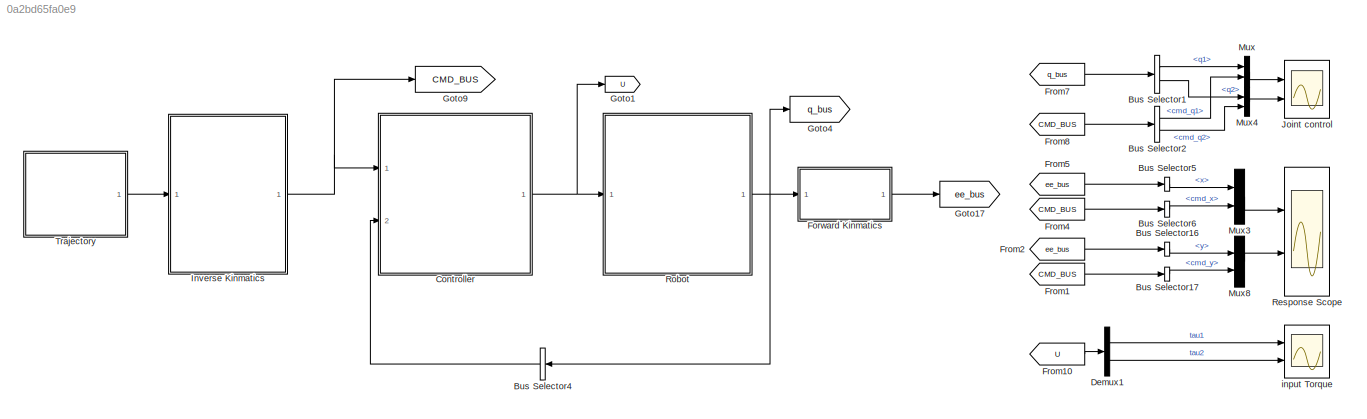
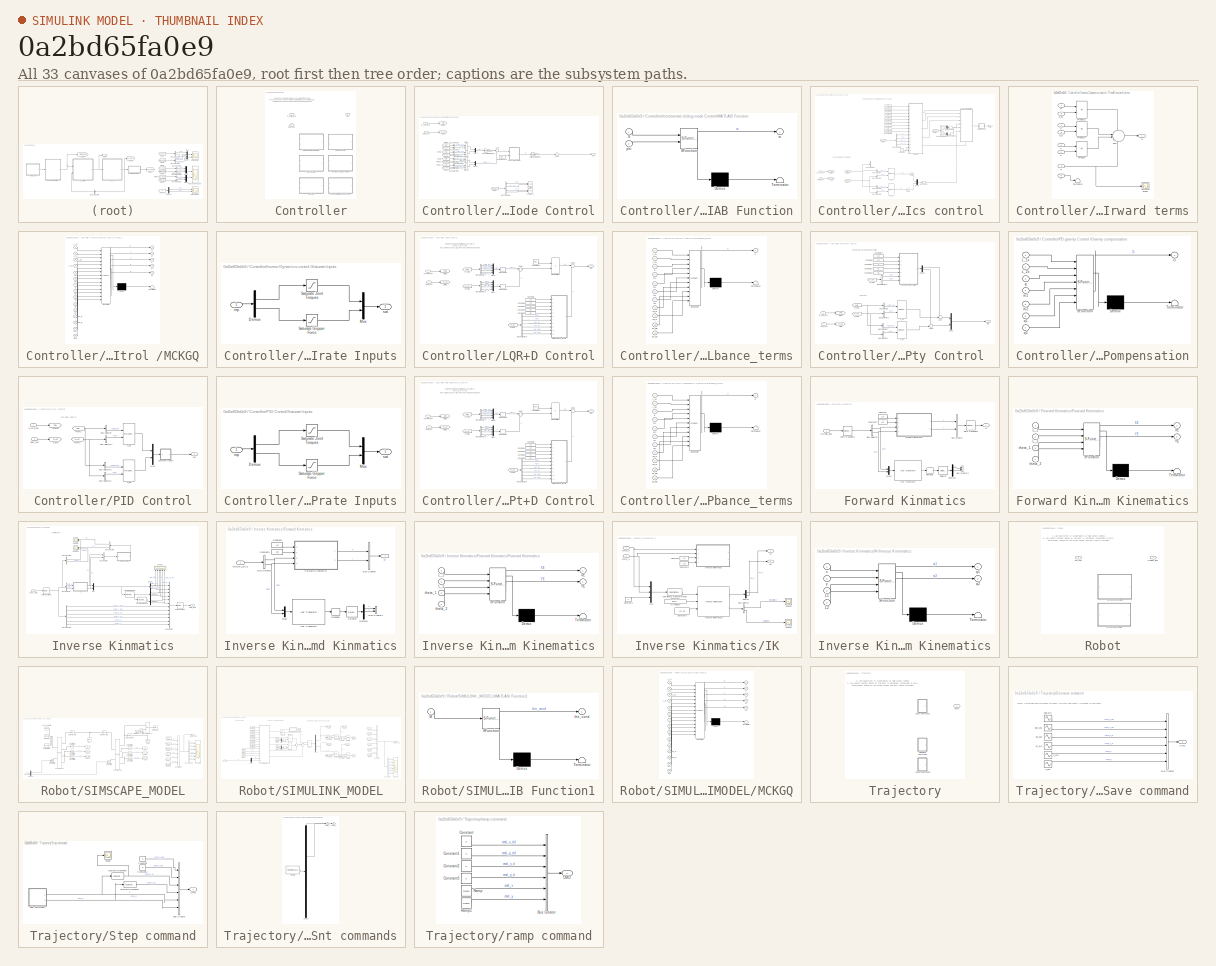
[diagram: thumbnail index - all 33 canvases of the model, root first then tree order]
MODEL slx_0a2bd65fa0e9
KIND model
CONFIG AbsTol = auto
CONFIG EnableMultiTasking = off
CONFIG FixedStep = auto
CONFIG MaxStep = auto
CONFIG MinStep = auto
CONFIG RelTol = 1e-3
CONFIG SampleTimeConstraint = Unconstrained
CONFIG SolverName = VariableStepAuto
CONFIG StartTime = 0.0
CONFIG StopTime = 10.0
BLOCK [BusSelector] Bus Selector1
  OutputSignals = q1,q2
  Ports = [1, 2]
BLOCK [BusSelector] Bus Selector16
  OutputSignals = y
  Ports = [1, 1]
BLOCK [BusSelector] Bus Selector17
  OutputSignals = cmd_y
  Ports = [1, 1]
BLOCK [BusSelector] Bus Selector2
  OutputSignals = cmd_q1,cmd_q2
  Ports = [1, 2]
BLOCK [BusSelector] Bus Selector4
  NameLocation = top
  OutputAsBus = on
  OutputSignals = q1_dd,q2_dd,q1_d,q2_d,q1,q2
  Ports = [1, 1]
BLOCK [BusSelector] Bus Selector5
  OutputSignals = x
  Ports = [1, 1]
BLOCK [BusSelector] Bus Selector6
  OutputSignals = cmd_x
  Ports = [1, 1]
BLOCK [SubSystem] Controller
  LabelModeActiveChoice = PD_plus_gravity
  Ports = [2, 1]
  PropagateVariantConditions = on
  RequestExecContextInheritance = off
  Variant = on
  VariantControlMode = label
BLOCK [SubSystem] Controller/Incremental sliding mode Control
  Ports = [2, 1]
  RequestExecContextInheritance = off
  VariantControl = Sliding_mode_control
BLOCK [Gain] Controller/Incremental sliding mode Control/Bandwidth (lambda)
  Gain = lambda
BLOCK [BusSelector] Controller/Incremental sliding mode Control/Bus Selector1
  OutputSignals = cmd_q1
  Ports = [1, 1]
BLOCK [BusSelector] Controller/Incremental sliding mode Control/Bus Selector10
  OutputSignals = q2
  Ports = [1, 1]
BLOCK [BusSelector] Controller/Incremental sliding mode Control/Bus Selector11
  OutputSignals = q2_d
  Ports = [1, 1]
BLOCK [BusSelector] Controller/Incremental sliding mode Control/Bus Selector12
  OutputSignals = cmd_q1_d
  Ports = [1, 1]
BLOCK [BusSelector] Controller/Incremental sliding mode Control/Bus Selector13
  OutputSignals = q1_d
  Ports = [1, 1]
BLOCK [BusSelector] Controller/Incremental sliding mode Control/Bus Selector14
  OutputSignals = cmd_q2_d
  Ports = [1, 1]
BLOCK [BusSelector] Controller/Incremental sliding mode Control/Bus Selector2
  OutputSignals = q1
  Ports = [1, 1]
BLOCK [BusSelector] Controller/Incremental sliding mode Control/Bus Selector4
  OutputSignals = q1,q1_d,q2,q2_d
  Ports = [1, 4]
BLOCK [BusSelector] Controller/Incremental sliding mode Control/Bus Selector9
  OutputSignals = cmd_q2
  Ports = [1, 1]
BLOCK [From] Controller/Incremental sliding mode Control/From1
  GotoTag = PLANT
BLOCK [From] Controller/Incremental sliding mode Control/From10
  GotoTag = PLANT
BLOCK [From] Controller/Incremental sliding mode Control/From11
  GotoTag = CMD
BLOCK [From] Controller/Incremental sliding mode Control/From12
  GotoTag = PLANT
BLOCK [From] Controller/Incremental sliding mode Control/From2
  GotoTag = CMD
BLOCK [From] Controller/Incremental sliding mode Control/From4
  GotoTag = CMD
BLOCK [From] Controller/Incremental sliding mode Control/From7
  GotoTag = PLANT
BLOCK [From] Controller/Incremental sliding mode Control/From8
  GotoTag = PLANT
BLOCK [From] Controller/Incremental sliding mode Control/From9
  GotoTag = CMD
BLOCK [Goto] Controller/Incremental sliding mode Control/Goto
  GotoTag = PLANT
BLOCK [Goto] Controller/Incremental sliding mode Control/Goto1
  GotoTag = CMD
BLOCK [SubSystem] Controller/Incremental sliding mode Control/MATLAB Function
  ErrorFcn = Stateflow.Translate.translate
  PermitHierarchicalResolution = ExplicitOnly
  Ports = [2, 1]
  RequestExecContextInheritance = off
  SFBlockType = MATLAB Function
  TreatAsAtomicUnit = on
BLOCK [Demux] Controller/Incremental sliding mode Control/MATLAB Function/ Demux 
  Outputs = 1
  Ports = [1, 1]
BLOCK [S-Function] Controller/Incremental sliding mode Control/MATLAB Function/ SFunction 
  EnableBusSupport = on
  FunctionName = sf_sfun
  PortCounts = [2 2]
  Ports = [2, 2]
  SFcnIsStateOwnerBlock = off
  SFunctionDeploymentMode = off
  Tag = Stateflow S-Function 17
BLOCK [Terminator] Controller/Incremental sliding mode Control/MATLAB Function/ Terminator 
BLOCK [Inport] Controller/Incremental sliding mode Control/MATLAB Function/S
BLOCK [Inport] Controller/Incremental sliding mode Control/MATLAB Function/phi
  Port = 2
BLOCK [Outport] Controller/Incremental sliding mode Control/MATLAB Function/w
BLOCK [Sum] Controller/Incremental sliding mode Control/Minus
  IconShape = rectangular
  Inputs = +-
  Ports = [2, 1]
BLOCK [Sum] Controller/Incremental sliding mode Control/Minus1
  IconShape = rectangular
  Inputs = +-
  Ports = [2, 1]
BLOCK [Sum] Controller/Incremental sliding mode Control/Minus2
  IconShape = rectangular
  Inputs = +-
  Ports = [2, 1]
BLOCK [Sum] Controller/Incremental sliding mode Control/Minus3
  IconShape = rectangular
  Inputs = +-
  Ports = [2, 1]
BLOCK [Mux] Controller/Incremental sliding mode Control/Mux2
  DisplayOption = bar
  Inputs = 2
  Ports = [2, 1]
BLOCK [Mux] Controller/Incremental sliding mode Control/Mux3
  DisplayOption = bar
  Inputs = 2
  Ports = [2, 1]
BLOCK [Sum] Controller/Incremental sliding mode Control/Sum
  Inputs = |++
  Ports = [2, 1]
BLOCK [Sum] Controller/Incremental sliding mode Control/Sum5
  Inputs = ++|
  Ports = [2, 1]
BLOCK [Gain] Controller/Incremental sliding mode Control/Switching term gain
  Gain = Kslide
BLOCK [Reference] Controller/Incremental sliding mode Control/XY Graph  REF=simulink/Sinks/XY Graph
  Ports = [2]
  SourceBlock = simulink/Sinks/XY Graph
  SourceProductBaseCode = SL
  SourceType = XY scope.
BLOCK [Reference] Controller/Incremental sliding mode Control/XY Graph1  REF=simulink/Sinks/XY Graph
  Ports = [2]
  SourceBlock = simulink/Sinks/XY Graph
  SourceProductBaseCode = SL
  SourceType = XY scope.
BLOCK [Constant] Controller/Incremental sliding mode Control/boundray layer
  Value = phi
BLOCK [Inport] Controller/Incremental sliding mode Control/plant_bus
  Port = 2
BLOCK [Inport] Controller/Incremental sliding mode Control/q_cmd_bus
BLOCK [Outport] Controller/Incremental sliding mode Control/tau
BLOCK [SubSystem] Controller/Inverse Dynamics control 
  Ports = [2, 1]
  RequestExecContextInheritance = off
  VariantControl = Inverse_dynamics_control
BLOCK [BusSelector] Controller/Inverse Dynamics control /Bus Selector
  OutputSignals = cmd_q1
  Ports = [1, 1]
BLOCK [BusSelector] Controller/Inverse Dynamics control /Bus Selector1
  OutputSignals = q1
  Ports = [1, 1]
BLOCK [BusSelector] Controller/Inverse Dynamics control /Bus Selector2
  OutputSignals = q2
  Ports = [1, 1]
BLOCK [BusSelector] Controller/Inverse Dynamics control /Bus Selector3
  OutputSignals = cmd_q2
  Ports = [1, 1]
BLOCK [BusSelector] Controller/Inverse Dynamics control /Bus Selector4
  OutputSignals = q1,q2,q1_d,q2_d
  Ports = [1, 4]
BLOCK [BusSelector] Controller/Inverse Dynamics control /Bus Selector5
  OutputSignals = q1,q2,q1_d,q2_d
  Ports = [1, 4]
BLOCK [BusSelector] Controller/Inverse Dynamics control /Bus Selector7
  OutputSignals = cmd_q1_dd,cmd_q2_dd
  Ports = [1, 2]
BLOCK [Reference] Controller/Inverse Dynamics control /C_q1  REF=pid_lib/PID Controller (2DOF)
  Ports = [2, 1]
  SourceBlock = pid_lib/PID Controller (2DOF)
  SourceProductBaseCode = SL
  SourceType = PID 2dof
BLOCK [Reference] Controller/Inverse Dynamics control /C_q2  REF=pid_lib/PID Controller (2DOF)
  Ports = [2, 1]
  SourceBlock = pid_lib/PID Controller (2DOF)
  SourceProductBaseCode = SL
  SourceType = PID 2dof
BLOCK [Constant] Controller/Inverse Dynamics control /Constant
  Value = 0
BLOCK [Constant] Controller/Inverse Dynamics control /Constant15
  Value = b2
BLOCK [Constant] Controller/Inverse Dynamics control /Constant16
  Value = m1
BLOCK [Constant] Controller/Inverse Dynamics control /Constant17
  Value = g
BLOCK [Constant] Controller/Inverse Dynamics control /Constant18
  Value = m2
BLOCK [Constant] Controller/Inverse Dynamics control /Constant19
  Value = L1x
BLOCK [Constant] Controller/Inverse Dynamics control /Constant2
  Value = L2x
BLOCK [Constant] Controller/Inverse Dynamics control /Constant20
  Value = b1
BLOCK [Constant] Controller/Inverse Dynamics control /Constant6
  Value = L2y
BLOCK [Constant] Controller/Inverse Dynamics control /Constant7
  Value = L1y
BLOCK [SubSystem] Controller/Inverse Dynamics control /FeedForward terms
  PortSchema = {"entries":[{"content":{"sides":[{"content":{"connectorIds":["In1","In2","In3","In4","In5","In6"]},"type":"ConnectorPlacement.EquallySpacedRectSide","uuid":"236e7a2f-027c-4887-b3e9-bc0e11a59ec6"},{"content":{"connectorIds":["Out1"],"side":"RIGHT"},"type":"ConnectorPlacement.EquallySpacedRectSide","uuid":"0b727d96-7650-4ea0-95ac-5fb1bad7af10"},{"content":{"connectorIds":["In7"],"side":"TOP"},"type"...<+424ch>
  Ports = [8, 1]
  RequestExecContextInheritance = off
BLOCK [Inport] Controller/Inverse Dynamics control /FeedForward terms/C
  NameLocation = top
BLOCK [Inport] Controller/Inverse Dynamics control /FeedForward terms/F
  Port = 8
BLOCK [Inport] Controller/Inverse Dynamics control /FeedForward terms/G
  Port = 3
BLOCK [Inport] Controller/Inverse Dynamics control /FeedForward terms/K
  Port = 2
BLOCK [Inport] Controller/Inverse Dynamics control /FeedForward terms/M
  Port = 7
BLOCK [Product] Controller/Inverse Dynamics control /FeedForward terms/Product
  Multiplication = Matrix(*)
  Ports = [2, 1]
BLOCK [Product] Controller/Inverse Dynamics control /FeedForward terms/Product2
  Multiplication = Matrix(*)
  Ports = [2, 1]
BLOCK [Product] Controller/Inverse Dynamics control /FeedForward terms/Product3
  Multiplication = Matrix(*)
  Ports = [2, 1]
BLOCK [Outport] Controller/Inverse Dynamics control /FeedForward terms/Q
  NameLocation = top
BLOCK [Scope] Controller/Inverse Dynamics control /FeedForward terms/Scope
  Floating = off
  NumInputPorts = 1
  Ports = [1]
  ScopeSpecificationString = Simulink.scopes.TimeScopeBlockCfg('CurrentConfiguration', extmgr.ConfigurationSet(extmgr.Configuration('Core','General UI',true),extmgr.Configuration('Core','Source UI',true),extmgr.Configuration('Sources','WiredSimulink',true,'DataLoggingVariableName','ScopeData3'),extmgr.Configuration('Visuals','Time Domain',true,'SerializedDisplays',{struct('MinYLimReal','-2.62865','MaxYLimReal','17.45371','YLa...<+1363ch>
BLOCK [Sum] Controller/Inverse Dynamics control /FeedForward terms/Sum
  Inputs = +|+|+|+
  Ports = [4, 1]
BLOCK [Terminator] Controller/Inverse Dynamics control /FeedForward terms/Terminator
BLOCK [Inport] Controller/Inverse Dynamics control /FeedForward terms/q
  Port = 4
BLOCK [Inport] Controller/Inverse Dynamics control /FeedForward terms/q_d
  Port = 5
BLOCK [Inport] Controller/Inverse Dynamics control /FeedForward terms/q_dd
  Port = 6
BLOCK [From] Controller/Inverse Dynamics control /From1
  GotoTag = PLANT
BLOCK [From] Controller/Inverse Dynamics control /From2
  GotoTag = CMD
BLOCK [From] Controller/Inverse Dynamics control /From3
  GotoTag = PLANT
BLOCK [From] Controller/Inverse Dynamics control /From5
  GotoTag = PLANT
BLOCK [Goto] Controller/Inverse Dynamics control /Goto
  GotoTag = PLANT
BLOCK [Goto] Controller/Inverse Dynamics control /Goto1
  GotoTag = CMD
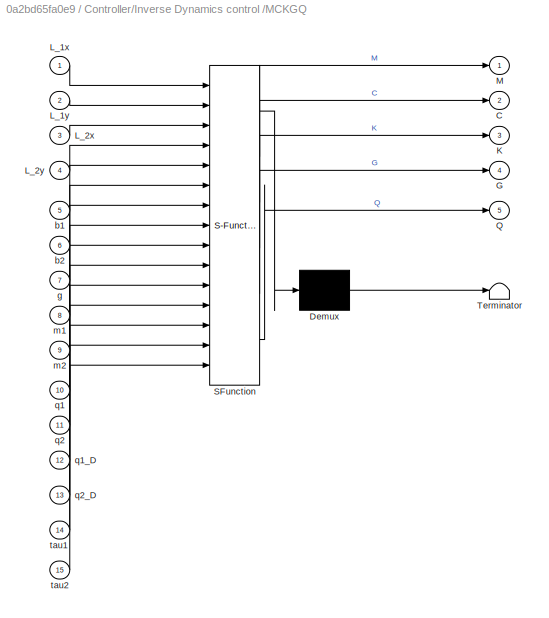
BLOCK [SubSystem] Controller/Inverse Dynamics control /MCKGQ
  ErrorFcn = Stateflow.Translate.translate
  PermitHierarchicalResolution = ExplicitOnly
  Ports = [15, 5]
  RequestExecContextInheritance = off
  SFBlockType = MATLAB Function
  TreatAsAtomicUnit = on
BLOCK [Demux] Controller/Inverse Dynamics control /MCKGQ/ Demux 
  Outputs = 1
  Ports = [1, 1]
BLOCK [S-Function] Controller/Inverse Dynamics control /MCKGQ/ SFunction 
  EnableBusSupport = on
  FunctionName = sf_sfun
  PortCounts = [15 6]
  Ports = [15, 6]
  SFcnIsStateOwnerBlock = off
  SFunctionDeploymentMode = off
  Tag = Stateflow S-Function 5
BLOCK [Terminator] Controller/Inverse Dynamics control /MCKGQ/ Terminator 
BLOCK [Outport] Controller/Inverse Dynamics control /MCKGQ/C
  Port = 2
BLOCK [Outport] Controller/Inverse Dynamics control /MCKGQ/G
  Port = 4
BLOCK [Outport] Controller/Inverse Dynamics control /MCKGQ/K
  Port = 3
BLOCK [Inport] Controller/Inverse Dynamics control /MCKGQ/L_1x
BLOCK [Inport] Controller/Inverse Dynamics control /MCKGQ/L_1y
  Port = 2
BLOCK [Inport] Controller/Inverse Dynamics control /MCKGQ/L_2x
  Port = 3
BLOCK [Inport] Controller/Inverse Dynamics control /MCKGQ/L_2y
  Port = 4
BLOCK [Outport] Controller/Inverse Dynamics control /MCKGQ/M
BLOCK [Outport] Controller/Inverse Dynamics control /MCKGQ/Q
  Port = 5
BLOCK [Inport] Controller/Inverse Dynamics control /MCKGQ/b1
  Port = 5
BLOCK [Inport] Controller/Inverse Dynamics control /MCKGQ/b2
  Port = 6
BLOCK [Inport] Controller/Inverse Dynamics control /MCKGQ/g
  Port = 7
BLOCK [Inport] Controller/Inverse Dynamics control /MCKGQ/m1
  Port = 8
BLOCK [Inport] Controller/Inverse Dynamics control /MCKGQ/m2
  Port = 9
BLOCK [Inport] Controller/Inverse Dynamics control /MCKGQ/q1
  Port = 10
BLOCK [Inport] Controller/Inverse Dynamics control /MCKGQ/q1_D
  Port = 12
BLOCK [Inport] Controller/Inverse Dynamics control /MCKGQ/q2
  Port = 11
BLOCK [Inport] Controller/Inverse Dynamics control /MCKGQ/q2_D
  Port = 13
BLOCK [Inport] Controller/Inverse Dynamics control /MCKGQ/tau1
  Port = 14
BLOCK [Inport] Controller/Inverse Dynamics control /MCKGQ/tau2
  Port = 15
BLOCK [Mux] Controller/Inverse Dynamics control /Mux2
  DisplayOption = bar
  Inputs = 2
  Ports = [2, 1]
BLOCK [Mux] Controller/Inverse Dynamics control /Mux5
  DisplayOption = bar
  Inputs = 2
  Ports = [2, 1]
BLOCK [Mux] Controller/Inverse Dynamics control /Mux7
  DisplayOption = bar
  Inputs = 2
  Ports = [2, 1]
BLOCK [Reshape] Controller/Inverse Dynamics control /Reshape1
  OutputDimensionality = Column vector (2-D)
  Ports = [1, 1]
BLOCK [Reshape] Controller/Inverse Dynamics control /Reshape2
  OutputDimensionality = Column vector (2-D)
  Ports = [1, 1]
BLOCK [Reshape] Controller/Inverse Dynamics control /Reshape5
  OutputDimensionality = Column vector (2-D)
  Ports = [1, 1]
BLOCK [SubSystem] Controller/Inverse Dynamics control /Saturate Inputs
  Ports = [1, 1]
  RequestExecContextInheritance = off
BLOCK [Demux] Controller/Inverse Dynamics control /Saturate Inputs/Demux
  Outputs = 2
  Ports = [1, 2]
BLOCK [Mux] Controller/Inverse Dynamics control /Saturate Inputs/Mux
  DisplayOption = bar
  Inputs = 2
  Ports = [2, 1]
BLOCK [Saturate] Controller/Inverse Dynamics control /Saturate Inputs/Saturate Gripper Force
  LowerLimit = -max_joint_torque2
  UpperLimit = max_joint_torque2
BLOCK [Saturate] Controller/Inverse Dynamics control /Saturate Inputs/Saturate Joint Torques
  LowerLimit = -max_joint_torque1
  UpperLimit = max_joint_torque1
BLOCK [Inport] Controller/Inverse Dynamics control /Saturate Inputs/inp
BLOCK [Outport] Controller/Inverse Dynamics control /Saturate Inputs/sat
  VectorParamsAs1DForOutWhenUnconnected = off
BLOCK [Sum] Controller/Inverse Dynamics control /Sum
  Inputs = ++|
  Ports = [2, 1]
BLOCK [Sum] Controller/Inverse Dynamics control /Sum1
  Inputs = ++|
  Ports = [2, 1]
BLOCK [Inport] Controller/Inverse Dynamics control /plant_bus
  Port = 2
BLOCK [Inport] Controller/Inverse Dynamics control /q_cmd_bus
BLOCK [Outport] Controller/Inverse Dynamics control /tau
BLOCK [SubSystem] Controller/LQR+D Control
  Ports = [2, 1]
  RequestExecContextInheritance = off
  VariantControl = LQR_D_control
BLOCK [BusSelector] Controller/LQR+D Control/Bus Selector6
  OutputSignals = q1,q2,q1_d,q2_d
  Ports = [1, 4]
BLOCK [BusSelector] Controller/LQR+D Control/Bus Selector7
  OutputSignals = cmd_q1,cmd_q2,cmd_q1_d,cmd_q2_d
  Ports = [1, 4]
BLOCK [BusSelector] Controller/LQR+D Control/Bus Selector8
  OutputSignals = q1,q2,q1_d,q2_d,q1_dd,q2_dd
  Ports = [1, 6]
BLOCK [Constant] Controller/LQR+D Control/Constant13
  Value = Klqr
  VectorParams1D = off
BLOCK [Constant] Controller/LQR+D Control/Constant3
  Value = m1
BLOCK [Constant] Controller/LQR+D Control/Constant4
  Value = g
BLOCK [Constant] Controller/LQR+D Control/Constant5
  Value = m2
BLOCK [Constant] Controller/LQR+D Control/Constant8
  Value = L1x
BLOCK [Constant] Controller/LQR+D Control/Constant9
  Value = L2x
BLOCK [From] Controller/LQR+D Control/From5
  GotoTag = PLANT
BLOCK [From] Controller/LQR+D Control/From6
  GotoTag = CMD
BLOCK [From] Controller/LQR+D Control/From7
  GotoTag = PLANT
BLOCK [Goto] Controller/LQR+D Control/Goto2
  GotoTag = PLANT
BLOCK [Goto] Controller/LQR+D Control/Goto3
  GotoTag = CMD
BLOCK [Product] Controller/LQR+D Control/Matrix Multiply1
  Multiplication = Matrix(*)
  Ports = [2, 1]
BLOCK [Mux] Controller/LQR+D Control/Mux4
  DisplayOption = bar
  Ports = [4, 1]
BLOCK [Mux] Controller/LQR+D Control/Mux5
  DisplayOption = bar
  Ports = [4, 1]
BLOCK [Reshape] Controller/LQR+D Control/Reshape3
  OutputDimensionality = Column vector (2-D)
  Ports = [1, 1]
BLOCK [Reshape] Controller/LQR+D Control/Reshape4
  OutputDimensionality = Column vector (2-D)
  Ports = [1, 1]
BLOCK [Sum] Controller/LQR+D Control/Sum4
  Inputs = |+-
  Ports = [2, 1]
BLOCK [Sum] Controller/LQR+D Control/Sum5
  Inputs = |++
  Ports = [2, 1]
BLOCK [SubSystem] Controller/LQR+D Control/disturbance_terms
  ErrorFcn = Stateflow.Translate.translate
  PermitHierarchicalResolution = ExplicitOnly
  Ports = [11, 1]
  RequestExecContextInheritance = off
  SFBlockType = MATLAB Function
  TreatAsAtomicUnit = on
BLOCK [Demux] Controller/LQR+D Control/disturbance_terms/ Demux 
  Outputs = 1
  Ports = [1, 1]
BLOCK [S-Function] Controller/LQR+D Control/disturbance_terms/ SFunction 
  EnableBusSupport = on
  FunctionName = sf_sfun
  PortCounts = [11 2]
  Ports = [11, 2]
  SFcnIsStateOwnerBlock = off
  SFunctionDeploymentMode = off
  Tag = Stateflow S-Function 4
BLOCK [Terminator] Controller/LQR+D Control/disturbance_terms/ Terminator 
BLOCK [Inport] Controller/LQR+D Control/disturbance_terms/L_1x
BLOCK [Inport] Controller/LQR+D Control/disturbance_terms/L_2x
  Port = 2
BLOCK [Outport] Controller/LQR+D Control/disturbance_terms/d
BLOCK [Inport] Controller/LQR+D Control/disturbance_terms/g
  Port = 3
BLOCK [Inport] Controller/LQR+D Control/disturbance_terms/m1
  Port = 4
BLOCK [Inport] Controller/LQR+D Control/disturbance_terms/m2
  Port = 5
BLOCK [Inport] Controller/LQR+D Control/disturbance_terms/q1
  Port = 6
BLOCK [Inport] Controller/LQR+D Control/disturbance_terms/q1_D
  Port = 8
BLOCK [Inport] Controller/LQR+D Control/disturbance_terms/q1_DD
  Port = 10
BLOCK [Inport] Controller/LQR+D Control/disturbance_terms/q2
  Port = 7
BLOCK [Inport] Controller/LQR+D Control/disturbance_terms/q2_D
  Port = 9
BLOCK [Inport] Controller/LQR+D Control/disturbance_terms/q2_DD
  Port = 11
BLOCK [Inport] Controller/LQR+D Control/plant_bus
  Port = 2
BLOCK [Inport] Controller/LQR+D Control/q_cmd_bus
BLOCK [Outport] Controller/LQR+D Control/tau
BLOCK [SubSystem] Controller/PD-gravity Control 
  Ports = [2, 1]
  RequestExecContextInheritance = off
  VariantControl = PD_plus_gravity
BLOCK [BusSelector] Controller/PD-gravity Control /Bus Selector
  OutputSignals = cmd_q1
  Ports = [1, 1]
BLOCK [BusSelector] Controller/PD-gravity Control /Bus Selector1
  OutputSignals = q1
  Ports = [1, 1]
BLOCK [BusSelector] Controller/PD-gravity Control /Bus Selector2
  OutputSignals = q2
  Ports = [1, 1]
BLOCK [BusSelector] Controller/PD-gravity Control /Bus Selector3
  OutputSignals = cmd_q2
  Ports = [1, 1]
BLOCK [BusSelector] Controller/PD-gravity Control /Bus Selector5
  OutputSignals = q1,q2
  Ports = [1, 2]
BLOCK [Reference] Controller/PD-gravity Control /C_q1  REF=pid_lib/PID Controller (2DOF)
  Ports = [2, 1]
  SourceBlock = pid_lib/PID Controller (2DOF)
  SourceProductBaseCode = SL
  SourceType = PID 2dof
BLOCK [Reference] Controller/PD-gravity Control /C_q2  REF=pid_lib/PID Controller (2DOF)
  Ports = [2, 1]
  SourceBlock = pid_lib/PID Controller (2DOF)
  SourceProductBaseCode = SL
  SourceType = PID 2dof
BLOCK [Constant] Controller/PD-gravity Control /Constant16
  Value = m1
BLOCK [Constant] Controller/PD-gravity Control /Constant17
  Value = g
BLOCK [Constant] Controller/PD-gravity Control /Constant18
  Value = m2
BLOCK [Constant] Controller/PD-gravity Control /Constant19
  Value = L1x
BLOCK [Constant] Controller/PD-gravity Control /Constant2
  Value = L2x
BLOCK [Demux] Controller/PD-gravity Control /Demux
  Outputs = 2
  Ports = [1, 2]
BLOCK [From] Controller/PD-gravity Control /From1
  GotoTag = PLANT
BLOCK [From] Controller/PD-gravity Control /From2
  GotoTag = CMD
BLOCK [From] Controller/PD-gravity Control /From4
  GotoTag = PLANT
BLOCK [Goto] Controller/PD-gravity Control /Goto
  GotoTag = PLANT
BLOCK [Goto] Controller/PD-gravity Control /Goto1
  GotoTag = CMD
BLOCK [SubSystem] Controller/PD-gravity Control /Gravity compensation
  ErrorFcn = Stateflow.Translate.translate
  PermitHierarchicalResolution = ExplicitOnly
  Ports = [7, 1]
  RequestExecContextInheritance = off
  SFBlockType = MATLAB Function
  TreatAsAtomicUnit = on
BLOCK [Demux] Controller/PD-gravity Control /Gravity compensation/ Demux 
  Outputs = 1
  Ports = [1, 1]
BLOCK [S-Function] Controller/PD-gravity Control /Gravity compensation/ SFunction 
  EnableBusSupport = on
  FunctionName = sf_sfun
  PortCounts = [7 2]
  Ports = [7, 2]
  SFcnIsStateOwnerBlock = off
  SFunctionDeploymentMode = off
  Tag = Stateflow S-Function 7
BLOCK [Terminator] Controller/PD-gravity Control /Gravity compensation/ Terminator 
BLOCK [Outport] Controller/PD-gravity Control /Gravity compensation/G
BLOCK [Inport] Controller/PD-gravity Control /Gravity compensation/L_1x
BLOCK [Inport] Controller/PD-gravity Control /Gravity compensation/L_2x
  Port = 2
BLOCK [Inport] Controller/PD-gravity Control /Gravity compensation/g
  Port = 3
BLOCK [Inport] Controller/PD-gravity Control /Gravity compensation/m1
  Port = 4
BLOCK [Inport] Controller/PD-gravity Control /Gravity compensation/m2
  Port = 5
BLOCK [Inport] Controller/PD-gravity Control /Gravity compensation/q1
  Port = 6
BLOCK [Inport] Controller/PD-gravity Control /Gravity compensation/q2
  Port = 7
BLOCK [Mux] Controller/PD-gravity Control /Mux2
  DisplayOption = bar
  Inputs = 2
  Ports = [2, 1]
BLOCK [Sum] Controller/PD-gravity Control /Sum
  Inputs = ++|
  Ports = [2, 1]
BLOCK [Sum] Controller/PD-gravity Control /Sum1
  Inputs = ++|
  Ports = [2, 1]
BLOCK [Inport] Controller/PD-gravity Control /plant_bus
  Port = 2
BLOCK [Inport] Controller/PD-gravity Control /q_cmd_bus
BLOCK [Outport] Controller/PD-gravity Control /tau
BLOCK [SubSystem] Controller/PID Control
  Ports = [2, 1]
  RequestExecContextInheritance = off
  VariantControl = PID_control
BLOCK [BusSelector] Controller/PID Control/Bus Selector
  OutputSignals = cmd_q1
  Ports = [1, 1]
BLOCK [BusSelector] Controller/PID Control/Bus Selector1
  OutputSignals = q1
  Ports = [1, 1]
BLOCK [BusSelector] Controller/PID Control/Bus Selector2
  OutputSignals = q2
  Ports = [1, 1]
BLOCK [BusSelector] Controller/PID Control/Bus Selector3
  OutputSignals = cmd_q2
  Ports = [1, 1]
BLOCK [Reference] Controller/PID Control/C_q1  REF=pid_lib/PID Controller (2DOF)
  Ports = [2, 1]
  SourceBlock = pid_lib/PID Controller (2DOF)
  SourceProductBaseCode = SL
  SourceType = PID 2dof
BLOCK [Reference] Controller/PID Control/C_q2  REF=pid_lib/PID Controller (2DOF)
  Ports = [2, 1]
  SourceBlock = pid_lib/PID Controller (2DOF)
  SourceProductBaseCode = SL
  SourceType = PID 2dof
BLOCK [From] Controller/PID Control/From1
  GotoTag = PLANT
BLOCK [From] Controller/PID Control/From2
  GotoTag = CMD
BLOCK [Goto] Controller/PID Control/Goto
  GotoTag = PLANT
BLOCK [Goto] Controller/PID Control/Goto1
  GotoTag = CMD
BLOCK [Mux] Controller/PID Control/Mux1
  DisplayOption = bar
  Inputs = 2
  Ports = [2, 1]
BLOCK [SubSystem] Controller/PID Control/Saturate Inputs
  Ports = [1, 1]
  RequestExecContextInheritance = off
BLOCK [Demux] Controller/PID Control/Saturate Inputs/Demux
  Outputs = 2
  Ports = [1, 2]
BLOCK [Mux] Controller/PID Control/Saturate Inputs/Mux
  DisplayOption = bar
  Inputs = 2
  Ports = [2, 1]
BLOCK [Saturate] Controller/PID Control/Saturate Inputs/Saturate Gripper Force
  LowerLimit = -max_joint_torque2
  UpperLimit = max_joint_torque2
BLOCK [Saturate] Controller/PID Control/Saturate Inputs/Saturate Joint Torques
  LowerLimit = -max_joint_torque1
  UpperLimit = max_joint_torque1
BLOCK [Inport] Controller/PID Control/Saturate Inputs/inp
BLOCK [Outport] Controller/PID Control/Saturate Inputs/sat
  VectorParamsAs1DForOutWhenUnconnected = off
BLOCK [Inport] Controller/PID Control/plant_bus
  Port = 2
BLOCK [Inport] Controller/PID Control/q_cmd_bus
BLOCK [Outport] Controller/PID Control/tau
BLOCK [SubSystem] Controller/Pole Placement+D Control
  Ports = [2, 1]
  RequestExecContextInheritance = off
  VariantControl = PolePlacement_D_control
BLOCK [BusSelector] Controller/Pole Placement+D Control/Bus Selector6
  OutputSignals = q1,q2,q1_d,q2_d
  Ports = [1, 4]
BLOCK [BusSelector] Controller/Pole Placement+D Control/Bus Selector7
  OutputSignals = cmd_q1,cmd_q2,cmd_q1_d,cmd_q2_d
  Ports = [1, 4]
BLOCK [BusSelector] Controller/Pole Placement+D Control/Bus Selector8
  OutputSignals = q1,q2,q1_d,q2_d,q1_dd,q2_dd
  Ports = [1, 6]
BLOCK [Constant] Controller/Pole Placement+D Control/Constant13
  Value = Kpp
  VectorParams1D = off
BLOCK [Constant] Controller/Pole Placement+D Control/Constant3
  Value = m1
BLOCK [Constant] Controller/Pole Placement+D Control/Constant4
  Value = g
BLOCK [Constant] Controller/Pole Placement+D Control/Constant5
  Value = m2
BLOCK [Constant] Controller/Pole Placement+D Control/Constant8
  Value = L1x
BLOCK [Constant] Controller/Pole Placement+D Control/Constant9
  Value = L2x
BLOCK [From] Controller/Pole Placement+D Control/From5
  GotoTag = PLANT
BLOCK [From] Controller/Pole Placement+D Control/From6
  GotoTag = CMD
BLOCK [From] Controller/Pole Placement+D Control/From7
  GotoTag = PLANT
BLOCK [Goto] Controller/Pole Placement+D Control/Goto2
  GotoTag = PLANT
BLOCK [Goto] Controller/Pole Placement+D Control/Goto3
  GotoTag = CMD
BLOCK [Product] Controller/Pole Placement+D Control/Matrix Multiply1
  Multiplication = Matrix(*)
  Ports = [2, 1]
BLOCK [Mux] Controller/Pole Placement+D Control/Mux4
  DisplayOption = bar
  Ports = [4, 1]
BLOCK [Mux] Controller/Pole Placement+D Control/Mux5
  DisplayOption = bar
  Ports = [4, 1]
BLOCK [Reshape] Controller/Pole Placement+D Control/Reshape3
  OutputDimensionality = Column vector (2-D)
  Ports = [1, 1]
BLOCK [Reshape] Controller/Pole Placement+D Control/Reshape4
  OutputDimensionality = Column vector (2-D)
  Ports = [1, 1]
BLOCK [Sum] Controller/Pole Placement+D Control/Sum4
  Inputs = |+-
  Ports = [2, 1]
BLOCK [Sum] Controller/Pole Placement+D Control/Sum5
  Inputs = |++
  Ports = [2, 1]
BLOCK [SubSystem] Controller/Pole Placement+D Control/disturbance_terms
  ErrorFcn = Stateflow.Translate.translate
  PermitHierarchicalResolution = ExplicitOnly
  Ports = [11, 1]
  RequestExecContextInheritance = off
  SFBlockType = MATLAB Function
  TreatAsAtomicUnit = on
BLOCK [Demux] Controller/Pole Placement+D Control/disturbance_terms/ Demux 
  Outputs = 1
  Ports = [1, 1]
BLOCK [S-Function] Controller/Pole Placement+D Control/disturbance_terms/ SFunction 
  EnableBusSupport = on
  FunctionName = sf_sfun
  PortCounts = [11 2]
  Ports = [11, 2]
  SFcnIsStateOwnerBlock = off
  SFunctionDeploymentMode = off
  Tag = Stateflow S-Function 19
BLOCK [Terminator] Controller/Pole Placement+D Control/disturbance_terms/ Terminator 
BLOCK [Inport] Controller/Pole Placement+D Control/disturbance_terms/L_1x
BLOCK [Inport] Controller/Pole Placement+D Control/disturbance_terms/L_2x
  Port = 2
BLOCK [Outport] Controller/Pole Placement+D Control/disturbance_terms/d
BLOCK [Inport] Controller/Pole Placement+D Control/disturbance_terms/g
  Port = 3
BLOCK [Inport] Controller/Pole Placement+D Control/disturbance_terms/m1
  Port = 4
BLOCK [Inport] Controller/Pole Placement+D Control/disturbance_terms/m2
  Port = 5
BLOCK [Inport] Controller/Pole Placement+D Control/disturbance_terms/q1
  Port = 6
BLOCK [Inport] Controller/Pole Placement+D Control/disturbance_terms/q1_D
  Port = 8
BLOCK [Inport] Controller/Pole Placement+D Control/disturbance_terms/q1_DD
  Port = 10
BLOCK [Inport] Controller/Pole Placement+D Control/disturbance_terms/q2
  Port = 7
BLOCK [Inport] Controller/Pole Placement+D Control/disturbance_terms/q2_D
  Port = 9
BLOCK [Inport] Controller/Pole Placement+D Control/disturbance_terms/q2_DD
  Port = 11
BLOCK [Inport] Controller/Pole Placement+D Control/plant_bus
  Port = 2
BLOCK [Inport] Controller/Pole Placement+D Control/q_cmd_bus
BLOCK [Outport] Controller/Pole Placement+D Control/tau
BLOCK [Inport] Controller/plant_bus
  Port = 2
BLOCK [Inport] Controller/q_cmd_bus
BLOCK [Outport] Controller/tau
BLOCK [Demux] Demux1
  Outputs = 2
  Ports = [1, 2]
BLOCK [SubSystem] Forward Kinmatics
  Ports = [1, 1]
  RequestExecContextInheritance = off
BLOCK [BusCreator] Forward Kinmatics/Bus Creator
  DisplayOption = bar
  InheritFromInputs = on
  Inputs = 2
  Ports = [2, 1]
BLOCK [BusCreator] Forward Kinmatics/Bus Creator1
  Commented = on
  DisplayOption = bar
  InheritFromInputs = on
  Inputs = 2
  Ports = [2, 1]
BLOCK [BusSelector] Forward Kinmatics/Bus Selector
  OutputSignals = q1,q2
  Ports = [1, 2]
BLOCK [Constant] Forward Kinmatics/Constant
  Value = L1x
BLOCK [Constant] Forward Kinmatics/Constant1
  Value = L2x
BLOCK [Demux] Forward Kinmatics/Demux3
  Commented = on
  Outputs = 3
  Ports = [1, 3]
BLOCK [SubSystem] Forward Kinmatics/Forward Kinematics
  ErrorFcn = Stateflow.Translate.translate
  NameLocation = top
  PermitHierarchicalResolution = ExplicitOnly
  Ports = [4, 2]
  RequestExecContextInheritance = off
  SFBlockType = MATLAB Function
  TreatAsAtomicUnit = on
BLOCK [Demux] Forward Kinmatics/Forward Kinematics/ Demux 
  Outputs = 1
  Ports = [1, 1]
BLOCK [S-Function] Forward Kinmatics/Forward Kinematics/ SFunction 
  EnableBusSupport = on
  FunctionName = sf_sfun
  PortCounts = [4 3]
  Ports = [4, 3]
  SFcnIsStateOwnerBlock = off
  SFunctionDeploymentMode = off
  Tag = Stateflow S-Function 15
BLOCK [Terminator] Forward Kinmatics/Forward Kinematics/ Terminator 
BLOCK [Inport] Forward Kinmatics/Forward Kinematics/L_1
BLOCK [Inport] Forward Kinmatics/Forward Kinematics/L_2
  Port = 2
BLOCK [Outport] Forward Kinmatics/Forward Kinematics/XE
BLOCK [Outport] Forward Kinmatics/Forward Kinematics/YE
  Port = 2
BLOCK [Inport] Forward Kinmatics/Forward Kinematics/theta_1
  Port = 3
BLOCK [Inport] Forward Kinmatics/Forward Kinematics/theta_2
  Port = 4
BLOCK [Reference] Forward Kinmatics/Get Transform  REF=robotmaniplib/Get Transform
  Commented = on
  Ports = [1, 1]
  SourceBlock = robotmaniplib/Get Transform
  SourceProductBaseCode = RO
  SourceType = Get Transform
BLOCK [Inport] Forward Kinmatics/MODEL_BUS
BLOCK [Mux] Forward Kinmatics/Mux2
  Commented = on
  DisplayOption = bar
  Inputs = 2
  Ports = [2, 1]
BLOCK [RateTransition] Forward Kinmatics/Rate Transition1
  OutPortSampleTimeOpt = Inherit
BLOCK [RateTransition] Forward Kinmatics/Rate Transition2
  OutPortSampleTimeOpt = Inherit
BLOCK [Reshape] Forward Kinmatics/Reshape
  Commented = on
  Ports = [1, 1]
BLOCK [Selector] Forward Kinmatics/Selector
  Commented = on
  IndexOptions = Index vector (dialog)
  Indices = [13:15]
  InputPortWidth = 16
  OutputSizes = 1
  Ports = [1, 1]
BLOCK [Outport] Forward Kinmatics/xy
BLOCK [From] From1
  GotoTag = CMD_BUS
BLOCK [From] From10
  GotoTag = U
BLOCK [From] From2
  GotoTag = ee_bus
BLOCK [From] From4
  GotoTag = CMD_BUS
BLOCK [From] From5
  GotoTag = ee_bus
BLOCK [From] From7
  GotoTag = q_bus
BLOCK [From] From8
  GotoTag = CMD_BUS
BLOCK [Goto] Goto1
  GotoTag = U
BLOCK [Goto] Goto17
  GotoTag = ee_bus
BLOCK [Goto] Goto4
  GotoTag = q_bus
BLOCK [Goto] Goto9
  GotoTag = CMD_BUS
BLOCK [SubSystem] Inverse Kinmatics
  Ports = [1, 1]
  RequestExecContextInheritance = off
BLOCK [BusCreator] Inverse Kinmatics/Bus Creator
  DisplayOption = bar
  InheritFromInputs = on
  Inputs = 12
  Ports = [12, 1]
BLOCK [BusCreator] Inverse Kinmatics/Bus Creator1
  DisplayOption = bar
  InheritFromInputs = on
  Inputs = 2
  Ports = [2, 1]
BLOCK [BusSelector] Inverse Kinmatics/Bus Selector
  OutputSignals = cmd_x,cmd_y
  Ports = [1, 2]
BLOCK [BusSelector] Inverse Kinmatics/Bus Selector1
  OutputSignals = cmd_x_dd,cmd_y_dd,cmd_x_d,cmd_y_d,cmd_x,cmd_y
  Ports = [1, 6]
BLOCK [BusSelector] Inverse Kinmatics/Bus Selector3
  OutputSignals = cmd_x,cmd_y
  Ports = [1, 2]
BLOCK [BusSelector] Inverse Kinmatics/Bus Selector4
  NameLocation = top
  OutputSignals = x,y
  Ports = [1, 2]
BLOCK [Inport] Inverse Kinmatics/CART_CMD
BLOCK [Outport] Inverse Kinmatics/CMD_BUS
BLOCK [Demux] Inverse Kinmatics/Demux
  Outputs = 2
  Ports = [1, 2]
BLOCK [Demux] Inverse Kinmatics/Demux1
  Outputs = 2
  Ports = [1, 2]
BLOCK [Demux] Inverse Kinmatics/Demux2
  Outputs = 2
  Ports = [1, 2]
BLOCK [Reference] Inverse Kinmatics/Discrete Derivative  REF=simulink/Discrete/Discrete Derivative
  Ports = [1, 1]
  SourceBlock = simulink/Discrete/Discrete Derivative
  SourceProductBaseCode = SL
  SourceType = Discrete Derivative
BLOCK [Reference] Inverse Kinmatics/Discrete Derivative1  REF=simulink/Discrete/Discrete Derivative
  Ports = [1, 1]
  SourceBlock = simulink/Discrete/Discrete Derivative
  SourceProductBaseCode = SL
  SourceType = Discrete Derivative
BLOCK [SubSystem] Inverse Kinmatics/Forward Kinmatics
  PortSchema = {"entries":[{"content":{"sides":[{"content":{"connectorIds":["In1"]},"type":"ConnectorPlacement.EquallySpacedRectSide","uuid":"2c0f0405-b445-4922-82b0-9ed34ea6e343"},{"content":{"connectorIds":[],"side":"RIGHT"},"type":"ConnectorPlacement.EquallySpacedRectSide","uuid":"91fea7c3-4850-470e-b524-5886f9b138cb"},{"content":{"connectorIds":["Out1"],"side":"TOP"},"type":"ConnectorPlacement.EquallySpacedR...<+240ch>
  Ports = [1, 1]
  RequestExecContextInheritance = off
BLOCK [BusCreator] Inverse Kinmatics/Forward Kinmatics/Bus Creator
  DisplayOption = bar
  InheritFromInputs = on
  Inputs = 2
  Ports = [2, 1]
BLOCK [BusCreator] Inverse Kinmatics/Forward Kinmatics/Bus Creator1
  Commented = on
  DisplayOption = bar
  InheritFromInputs = on
  Inputs = 2
  Ports = [2, 1]
BLOCK [BusSelector] Inverse Kinmatics/Forward Kinmatics/Bus Selector
  OutputSignals = q1,q2
  Ports = [1, 2]
BLOCK [Constant] Inverse Kinmatics/Forward Kinmatics/Constant
  Value = L1x
BLOCK [Constant] Inverse Kinmatics/Forward Kinmatics/Constant1
  Value = L2x
BLOCK [Demux] Inverse Kinmatics/Forward Kinmatics/Demux3
  Commented = on
  Outputs = 3
  Ports = [1, 3]
BLOCK [SubSystem] Inverse Kinmatics/Forward Kinmatics/Forward Kinematics
  ErrorFcn = Stateflow.Translate.translate
  NameLocation = top
  PermitHierarchicalResolution = ExplicitOnly
  Ports = [4, 2]
  RequestExecContextInheritance = off
  SFBlockType = MATLAB Function
  TreatAsAtomicUnit = on
BLOCK [Demux] Inverse Kinmatics/Forward Kinmatics/Forward Kinematics/ Demux 
  Outputs = 1
  Ports = [1, 1]
BLOCK [S-Function] Inverse Kinmatics/Forward Kinmatics/Forward Kinematics/ SFunction 
  EnableBusSupport = on
  FunctionName = sf_sfun
  PortCounts = [4 3]
  Ports = [4, 3]
  SFcnIsStateOwnerBlock = off
  SFunctionDeploymentMode = off
  Tag = Stateflow S-Function 1
BLOCK [Terminator] Inverse Kinmatics/Forward Kinmatics/Forward Kinematics/ Terminator 
BLOCK [Inport] Inverse Kinmatics/Forward Kinmatics/Forward Kinematics/L_1
BLOCK [Inport] Inverse Kinmatics/Forward Kinmatics/Forward Kinematics/L_2
  Port = 2
BLOCK [Outport] Inverse Kinmatics/Forward Kinmatics/Forward Kinematics/XE
BLOCK [Outport] Inverse Kinmatics/Forward Kinmatics/Forward Kinematics/YE
  Port = 2
BLOCK [Inport] Inverse Kinmatics/Forward Kinmatics/Forward Kinematics/theta_1
  Port = 3
BLOCK [Inport] Inverse Kinmatics/Forward Kinmatics/Forward Kinematics/theta_2
  Port = 4
BLOCK [Reference] Inverse Kinmatics/Forward Kinmatics/Get Transform  REF=robotmaniplib/Get Transform
  Commented = on
  Ports = [1, 1]
  SourceBlock = robotmaniplib/Get Transform
  SourceProductBaseCode = RO
  SourceType = Get Transform
BLOCK [Inport] Inverse Kinmatics/Forward Kinmatics/MODEL_BUS
BLOCK [Mux] Inverse Kinmatics/Forward Kinmatics/Mux2
  Commented = on
  DisplayOption = bar
  Inputs = 2
  Ports = [2, 1]
BLOCK [Reshape] Inverse Kinmatics/Forward Kinmatics/Reshape
  Commented = on
  Ports = [1, 1]
BLOCK [Selector] Inverse Kinmatics/Forward Kinmatics/Selector
  Commented = on
  IndexOptions = Index vector (dialog)
  Indices = [13:15]
  InputPortWidth = 16
  OutputSizes = 1
  Ports = [1, 1]
BLOCK [Outport] Inverse Kinmatics/Forward Kinmatics/xy
BLOCK [SubSystem] Inverse Kinmatics/IK
  Ports = [2, 2]
  RequestExecContextInheritance = off
BLOCK [Inport] Inverse Kinmatics/IK/<cmd_x>
BLOCK [Inport] Inverse Kinmatics/IK/<cmd_y>
  Port = 2
BLOCK [BusSelector] Inverse Kinmatics/IK/Bus Selector
  OutputSignals = Iterations,ExitFlag
  Ports = [1, 2]
BLOCK [Constant] Inverse Kinmatics/IK/Constant
  Commented = on
  Value = L1x
BLOCK [Constant] Inverse Kinmatics/IK/Constant1
  Commented = on
  Value = L2x
BLOCK [Constant] Inverse Kinmatics/IK/Constant2
  Value = 0
BLOCK [Constant] Inverse Kinmatics/IK/Constant3
  Value = [0, 0]
BLOCK [Reference] Inverse Kinmatics/IK/Coordinate Transformation Conversion  REF=robotcorelib/Coordinate Transformation Conversion
  Ports = [1, 1]
  SourceBlock = robotcorelib/Coordinate Transformation Conversion
  SourceProductBaseCode = RO
  SourceType = robotics.slcore.internal.block.CoordinateTransformationConversion
BLOCK [Demux] Inverse Kinmatics/IK/Demux
  Outputs = 2
  Ports = [1, 2]
BLOCK [Constant] Inverse Kinmatics/IK/IK Weights
  Value = [0.1, 0.1, 0, 1, 1, 0]
BLOCK [SubSystem] Inverse Kinmatics/IK/Inverse Kinematics
  Commented = on
  ErrorFcn = Stateflow.Translate.translate
  NameLocation = top
  PermitHierarchicalResolution = ExplicitOnly
  Ports = [4, 2]
  RequestExecContextInheritance = off
  SFBlockType = MATLAB Function
  TreatAsAtomicUnit = on
BLOCK [Demux] Inverse Kinmatics/IK/Inverse Kinematics/ Demux 
  Outputs = 1
  Ports = [1, 1]
BLOCK [S-Function] Inverse Kinmatics/IK/Inverse Kinematics/ SFunction 
  EnableBusSupport = on
  FunctionName = sf_sfun
  PortCounts = [4 3]
  Ports = [4, 3]
  SFcnIsStateOwnerBlock = off
  SFunctionDeploymentMode = off
  Tag = Stateflow S-Function 11
BLOCK [Terminator] Inverse Kinmatics/IK/Inverse Kinematics/ Terminator 
BLOCK [Inport] Inverse Kinmatics/IK/Inverse Kinematics/L1
  Port = 3
BLOCK [Inport] Inverse Kinmatics/IK/Inverse Kinematics/L2
  Port = 4
BLOCK [Outport] Inverse Kinmatics/IK/Inverse Kinematics/q1
BLOCK [Outport] Inverse Kinmatics/IK/Inverse Kinematics/q2
  Port = 2
BLOCK [Inport] Inverse Kinmatics/IK/Inverse Kinematics/x
BLOCK [Inport] Inverse Kinmatics/IK/Inverse Kinematics/y
  Port = 2
BLOCK [Reference] Inverse Kinmatics/IK/Inverse Kinematics1  REF=robotmaniplib/Inverse Kinematics
  Ports = [3, 2]
  SourceBlock = robotmaniplib/Inverse Kinematics
  SourceProductBaseCode = RO
  SourceType = Inverse Kinematics
BLOCK [Mux] Inverse Kinmatics/IK/Mux
  DisplayOption = bar
  Inputs = 3
  Ports = [3, 1]
BLOCK [Scope] Inverse Kinmatics/IK/Scope1
  Floating = off
  NumInputPorts = 1
  Ports = [1]
  ScopeSpecificationString = Simulink.scopes.TimeScopeBlockCfg('CurrentConfiguration', extmgr.ConfigurationSet(extmgr.Configuration('Core','General UI',true),extmgr.Configuration('Core','Source UI',true),extmgr.Configuration('Sources','WiredSimulink',true,'DataLoggingVariableName','ScopeData2'),extmgr.Configuration('Visuals','Time Domain',true,'SerializedDisplays',{struct('MinYLimReal','0.875','MaxYLimReal','2.125','YLabelRea...<+1405ch>
BLOCK [Scope] Inverse Kinmatics/IK/Scope2
  Floating = off
  NumInputPorts = 1
  Ports = [1]
  ScopeSpecificationString = Simulink.scopes.TimeScopeBlockCfg('CurrentConfiguration', extmgr.ConfigurationSet(extmgr.Configuration('Core','General UI',true),extmgr.Configuration('Core','Source UI',true),extmgr.Configuration('Sources','WiredSimulink',true,'DataLoggingVariableName','ScopeData3'),extmgr.Configuration('Visuals','Time Domain',true,'SerializedDisplays',{struct('MinYLimReal','6.00000','MaxYLimReal','26.00000','YLab...<+1402ch>
BLOCK [Outport] Inverse Kinmatics/IK/q1
BLOCK [Outport] Inverse Kinmatics/IK/q2
  Port = 2
BLOCK [Mux] Inverse Kinmatics/Mux
  DisplayOption = bar
  Inputs = 2
  Ports = [2, 1]
BLOCK [RateTransition] Inverse Kinmatics/Rate Transition1
  OutPortSampleTimeOpt = Inherit
BLOCK [RateTransition] Inverse Kinmatics/Rate Transition5
  OutPortSampleTimeOpt = Inherit
BLOCK [Scope] Inverse Kinmatics/Scope
  Floating = off
  NameLocation = top
  NumInputPorts = 2
  Ports = [2]
  ScopeSpecificationString = Simulink.scopes.TimeScopeBlockCfg('CurrentConfiguration', extmgr.ConfigurationSet(extmgr.Configuration('Core','General UI',true),extmgr.Configuration('Core','Source UI',true),extmgr.Configuration('Sources','WiredSimulink',true,'DataLoggingVariableName','ScopeData4'),extmgr.Configuration('Visuals','Time Domain',true,'SerializedDisplays',{struct('MinYLimReal','0.1892','MaxYLimReal','0.30329','YLabel...<+1445ch>
BLOCK [Scope] Inverse Kinmatics/Scope1
  Floating = off
  NameLocation = right
  NumInputPorts = 6
  Ports = [6]
  ScopeSpecificationString = Simulink.scopes.TimeScopeBlockCfg('CurrentConfiguration', extmgr.ConfigurationSet(extmgr.Configuration('Core','General UI',true),extmgr.Configuration('Core','Source UI',true),extmgr.Configuration('Sources','WiredSimulink',true,'DataLoggingVariableName','ScopeData1'),extmgr.Configuration('Visuals','Time Domain',true,'SerializedDisplays',{struct('MinYLimReal','0.14255','MaxYLimReal','0.57193','YLabe...<+4889ch>
BLOCK [Scope] Inverse Kinmatics/Scope2
  Floating = off
  NameLocation = top
  NumInputPorts = 2
  Ports = [2]
  ScopeSpecificationString = Simulink.scopes.TimeScopeBlockCfg('CurrentConfiguration', extmgr.ConfigurationSet(extmgr.Configuration('Core','General UI',true),extmgr.Configuration('Core','Source UI',true),extmgr.Configuration('Sources','WiredSimulink',true,'DataLoggingVariableName','ScopeData5'),extmgr.Configuration('Visuals','Time Domain',true,'SerializedDisplays',{struct('MinYLimReal','0.19115','MaxYLimReal','0.30592','YLabe...<+1448ch>
BLOCK [Scope] Joint control
  Floating = off
  NumInputPorts = 2
  Ports = [2]
  ScopeSpecificationString = Simulink.scopes.TimeScopeBlockCfg('CurrentConfiguration', extmgr.ConfigurationSet(extmgr.Configuration('Core','General UI',true),extmgr.Configuration('Core','Source UI',true),extmgr.Configuration('Sources','WiredSimulink',true,'DataLoggingVariableName','ScopeData1'),extmgr.Configuration('Visuals','Time Domain',true,'SerializedDisplays',{struct('MinYLimReal','-0.23446','MaxYLimReal','0.63646','YLab...<+2075ch>
BLOCK [Mux] Mux
  DisplayOption = bar
  Inputs = 2
  Ports = [2, 1]
BLOCK [Mux] Mux3
  DisplayOption = bar
  Inputs = 2
  Ports = [2, 1]
BLOCK [Mux] Mux4
  DisplayOption = bar
  Inputs = 2
  Ports = [2, 1]
BLOCK [Mux] Mux8
  DisplayOption = bar
  Inputs = 2
  Ports = [2, 1]
BLOCK [Scope] Response Scope
  Floating = off
  NumInputPorts = 2
  Ports = [2]
  ScopeSpecificationString = Simulink.scopes.TimeScopeBlockCfg('CurrentConfiguration', extmgr.ConfigurationSet(extmgr.Configuration('Core','General UI',true),extmgr.Configuration('Core','Source UI',true),extmgr.Configuration('Sources','WiredSimulink',true,'DataLoggingVariableName','ScopeData2'),extmgr.Configuration('Visuals','Time Domain',true,'SerializedDisplays',{struct('MinYLimReal','0.08265','MaxYLimReal','0.49082','YLabe...<+2282ch>
BLOCK [SubSystem] Robot
  LabelModeActiveChoice = Choice_1
  Ports = [1, 1]
  RequestExecContextInheritance = off
  Variant = on
  VariantControlMode = label
BLOCK [Outport] Robot/MODEL_BUS
BLOCK [SubSystem] Robot/SIMSCAPE_MODEL
  Ports = [1, 1]
  RequestExecContextInheritance = off
  VariantControl = Choice_1
BLOCK [BusCreator] Robot/SIMSCAPE_MODEL/Bus Creator
  DisplayOption = bar
  InheritFromInputs = on
  Inputs = 6
  Ports = [6, 1]
BLOCK [BusSelector] Robot/SIMSCAPE_MODEL/Bus Selector1
  OutputSignals = q1,q1_d,q1_dd,q2,q2_d,q2_dd
  Ports = [1, 6]
BLOCK [Demux] Robot/SIMSCAPE_MODEL/Demux2
  Outputs = 2
  Ports = [1, 2]
BLOCK [From] Robot/SIMSCAPE_MODEL/From10
  GotoTag = q1_dd
BLOCK [From] Robot/SIMSCAPE_MODEL/From11
  GotoTag = q2_d
BLOCK [From] Robot/SIMSCAPE_MODEL/From14
  GotoTag = q2_dd
BLOCK [From] Robot/SIMSCAPE_MODEL/From7
  GotoTag = q2
BLOCK [From] Robot/SIMSCAPE_MODEL/From8
  GotoTag = q1_d
BLOCK [From] Robot/SIMSCAPE_MODEL/From9
  GotoTag = q1
BLOCK [Goto] Robot/SIMSCAPE_MODEL/Goto1
  GotoTag = q2_dd
BLOCK [Goto] Robot/SIMSCAPE_MODEL/Goto2
  GotoTag = q2_d
BLOCK [Goto] Robot/SIMSCAPE_MODEL/Goto4
  GotoTag = q1_dd
BLOCK [Goto] Robot/SIMSCAPE_MODEL/Goto5
  GotoTag = q1_d
BLOCK [Goto] Robot/SIMSCAPE_MODEL/Goto6
  GotoTag = q1
BLOCK [Goto] Robot/SIMSCAPE_MODEL/Goto7
  GotoTag = q2
BLOCK [Reference] Robot/SIMSCAPE_MODEL/Link1  REF=sm_lib/Body Elements/Brick Solid
  NameLocation = right
  Ports = [0, 0, 0, 0, 0, 0, 1]
  SourceBlock = sm_lib/Body Elements/Brick Solid
  SourceProductBaseCode = MS
  SourceType = Brick Solid
BLOCK [Reference] Robot/SIMSCAPE_MODEL/Link2  REF=sm_lib/Body Elements/Brick Solid
  NameLocation = right
  Ports = [0, 0, 0, 0, 0, 0, 1]
  SourceBlock = sm_lib/Body Elements/Brick Solid
  SourceProductBaseCode = MS
  SourceType = Brick Solid
BLOCK [Outport] Robot/SIMSCAPE_MODEL/MODEL_BUS
BLOCK [Reference] Robot/SIMSCAPE_MODEL/Mechanism Configuration  REF=sm_lib/Utilities/Mechanism
Configuration
  Ports = [0, 0, 0, 0, 0, 0, 1]
  SourceBlock = sm_lib/Utilities/Mechanism\nConfiguration
  SourceProductBaseCode = MS
  SourceType = Mechanism\nConfiguration
BLOCK [Reference] Robot/SIMSCAPE_MODEL/PS-Simulink Converter  REF=nesl_utility/PS-Simulink
Converter
  Ports = [0, 1, 0, 0, 0, 1]
  SourceBlock = nesl_utility/PS-Simulink\nConverter
  SourceProductBaseCode = PW,SS
  SourceType = PS-Simulink\nConverter
BLOCK [Reference] Robot/SIMSCAPE_MODEL/PS-Simulink Converter1  REF=nesl_utility/PS-Simulink
Converter
  Ports = [0, 1, 0, 0, 0, 1]
  SourceBlock = nesl_utility/PS-Simulink\nConverter
  SourceProductBaseCode = PW,SS
  SourceType = PS-Simulink\nConverter
BLOCK [Reference] Robot/SIMSCAPE_MODEL/PS-Simulink Converter2  REF=nesl_utility/PS-Simulink
Converter
  Ports = [0, 1, 0, 0, 0, 1]
  SourceBlock = nesl_utility/PS-Simulink\nConverter
  SourceProductBaseCode = PW,SS
  SourceType = PS-Simulink\nConverter
BLOCK [Reference] Robot/SIMSCAPE_MODEL/PS-Simulink Converter4  REF=nesl_utility/PS-Simulink
Converter
  Ports = [0, 1, 0, 0, 0, 1]
  SourceBlock = nesl_utility/PS-Simulink\nConverter
  SourceProductBaseCode = PW,SS
  SourceType = PS-Simulink\nConverter
BLOCK [Reference] Robot/SIMSCAPE_MODEL/PS-Simulink Converter5  REF=nesl_utility/PS-Simulink
Converter
  Ports = [0, 1, 0, 0, 0, 1]
  SourceBlock = nesl_utility/PS-Simulink\nConverter
  SourceProductBaseCode = PW,SS
  SourceType = PS-Simulink\nConverter
BLOCK [Reference] Robot/SIMSCAPE_MODEL/PS-Simulink Converter6  REF=nesl_utility/PS-Simulink
Converter
  Ports = [0, 1, 0, 0, 0, 1]
  SourceBlock = nesl_utility/PS-Simulink\nConverter
  SourceProductBaseCode = PW,SS
  SourceType = PS-Simulink\nConverter
BLOCK [Reference] Robot/SIMSCAPE_MODEL/PS-Simulink Converter8  REF=nesl_utility/PS-Simulink
Converter
  NameLocation = top
  Ports = [0, 1, 0, 0, 0, 1]
  SourceBlock = nesl_utility/PS-Simulink\nConverter
  SourceProductBaseCode = PW,SS
  SourceType = PS-Simulink\nConverter
BLOCK [Reference] Robot/SIMSCAPE_MODEL/Revolute Joint  REF=sm_lib/Joints/Revolute Joint
  AttributesFormatString = %<DampingCoefficient>\n%<PositionTargetValue>\n%<VelocityTargetValue>
  Ports = [0, 0, 0, 0, 0, 2, 4]
  SourceBlock = sm_lib/Joints/Revolute Joint
  SourceProductBaseCode = MS
  SourceType = Revolute Joint
BLOCK [Reference] Robot/SIMSCAPE_MODEL/Revolute Joint1  REF=sm_lib/Joints/Revolute Joint
  AttributesFormatString = %<DampingCoefficient>\n%<PositionTargetValue>\n%<VelocityTargetValue>
  Ports = [0, 0, 0, 0, 0, 2, 4]
  SourceBlock = sm_lib/Joints/Revolute Joint
  SourceProductBaseCode = MS
  SourceType = Revolute Joint
BLOCK [Reference] Robot/SIMSCAPE_MODEL/Rigid Transform  REF=sm_lib/Frames and
Transforms/Rigid
Transform
  Ports = [0, 0, 0, 0, 0, 1, 1]
  SourceBlock = sm_lib/Frames and\nTransforms/Rigid\nTransform
  SourceProductBaseCode = MS
  SourceType = Rigid\nTransform
BLOCK [Reference] Robot/SIMSCAPE_MODEL/Rigid Transform1  REF=sm_lib/Frames and
Transforms/Rigid
Transform
  Ports = [0, 0, 0, 0, 0, 1, 1]
  SourceBlock = sm_lib/Frames and\nTransforms/Rigid\nTransform
  SourceProductBaseCode = MS
  SourceType = Rigid\nTransform
BLOCK [Reference] Robot/SIMSCAPE_MODEL/Rigid Transform2  REF=sm_lib/Frames and
Transforms/Rigid
Transform
  Ports = [0, 0, 0, 0, 0, 1, 1]
  SourceBlock = sm_lib/Frames and\nTransforms/Rigid\nTransform
  SourceProductBaseCode = MS
  SourceType = Rigid\nTransform
BLOCK [Scope] Robot/SIMSCAPE_MODEL/SL_ANGS
  Floating = off
  NumInputPorts = 6
  Ports = [6]
  ScopeSpecificationString = Simulink.scopes.TimeScopeBlockCfg('CurrentConfiguration', extmgr.ConfigurationSet(extmgr.Configuration('Core','General UI',true),extmgr.Configuration('Core','Source UI',true),extmgr.Configuration('Sources','WiredSimulink',true,'DataLoggingVariableName','ScopeData1'),extmgr.Configuration('Visuals','Time Domain',true,'SerializedDisplays',{struct('MinYLimReal','-55.14001','MaxYLimReal','327.33011','Y...<+4859ch>
BLOCK [Reference] Robot/SIMSCAPE_MODEL/Simulink-PS Converter  REF=nesl_utility/Simulink-PS
Converter
  Ports = [1, 0, 0, 0, 0, 0, 1]
  SourceBlock = nesl_utility/Simulink-PS\nConverter
  SourceProductBaseCode = PW,SS
  SourceType = Simulink-PS\nConverter
BLOCK [Reference] Robot/SIMSCAPE_MODEL/Simulink-PS Converter1  REF=nesl_utility/Simulink-PS
Converter
  Ports = [1, 0, 0, 0, 0, 0, 1]
  SourceBlock = nesl_utility/Simulink-PS\nConverter
  SourceProductBaseCode = PW,SS
  SourceType = Simulink-PS\nConverter
BLOCK [Reference] Robot/SIMSCAPE_MODEL/Solver Configuration  REF=nesl_utility/Solver
Configuration
  Ports = [0, 0, 0, 0, 0, 0, 1]
  SourceBlock = nesl_utility/Solver\nConfiguration
  SourceProductBaseCode = PW,SS
  SourceType = Solver\nConfiguration
BLOCK [Inport] Robot/SIMSCAPE_MODEL/Tau_VEC
BLOCK [Terminator] Robot/SIMSCAPE_MODEL/Terminator1
BLOCK [Reference] Robot/SIMSCAPE_MODEL/Transform Sensor  REF=sm_lib/Frames and
Transforms/Transform
Sensor
  NameLocation = top
  Ports = [0, 0, 0, 0, 0, 1, 2]
  SourceBlock = sm_lib/Frames and\nTransforms/Transform\nSensor
  SourceProductBaseCode = MS
  SourceType = Transform\nSensor
BLOCK [Reference] Robot/SIMSCAPE_MODEL/World Frame  REF=sm_lib/Frames and
Transforms/World Frame
  Ports = [0, 0, 0, 0, 0, 0, 1]
  SourceBlock = sm_lib/Frames and\nTransforms/World Frame
  SourceProductBaseCode = MS
  SourceType = World Frame
BLOCK [Reference] Robot/SIMSCAPE_MODEL/World Frame1  REF=sm_lib/Frames and
Transforms/World Frame
  NameLocation = top
  Ports = [0, 0, 0, 0, 0, 0, 1]
  SourceBlock = sm_lib/Frames and\nTransforms/World Frame
  SourceProductBaseCode = MS
  SourceType = World Frame
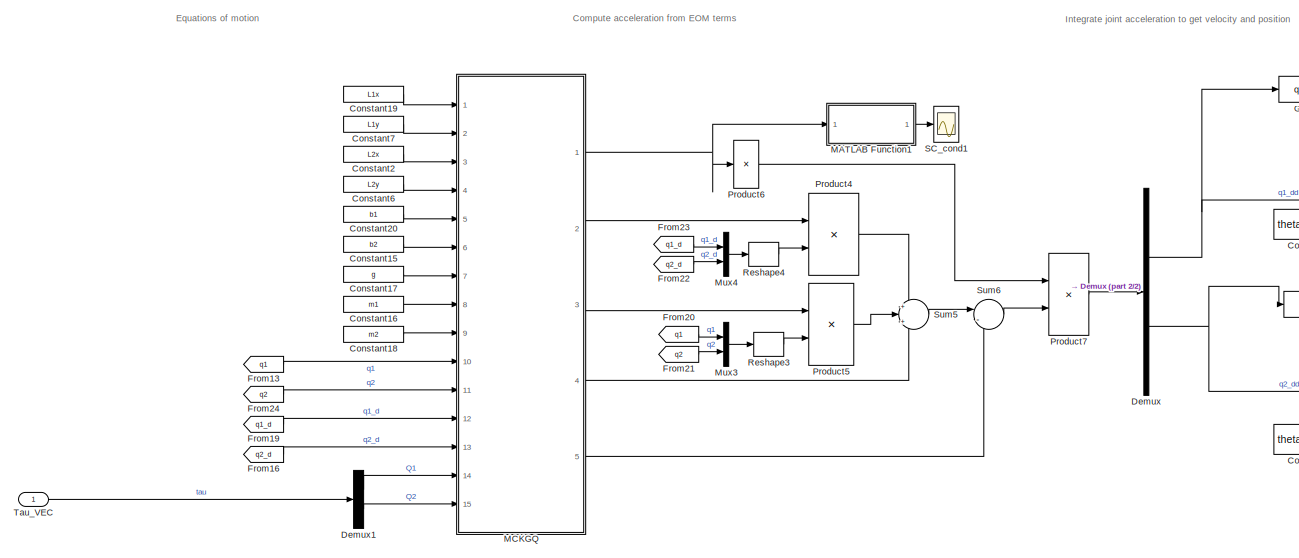
[diagram: Robot/SIMULINK_MODEL - part 1/2, left side, full height]
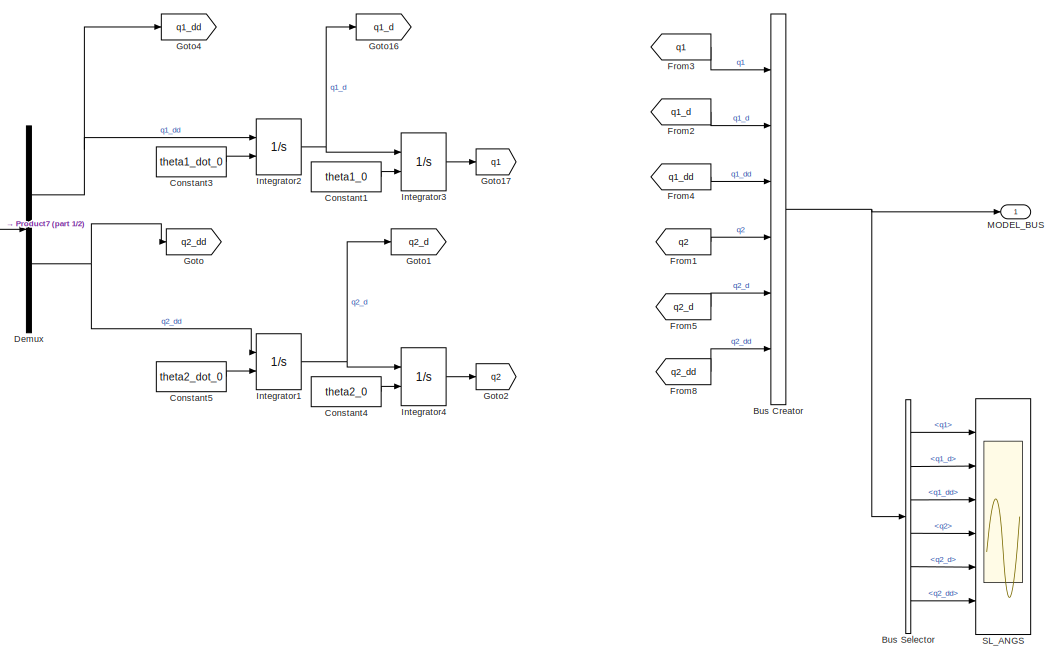
[diagram: Robot/SIMULINK_MODEL - part 2/2, right side, full height]
BLOCK [SubSystem] Robot/SIMULINK_MODEL
  NameLocation = top
  Ports = [1, 1]
  RequestExecContextInheritance = off
  VariantControl = Choice
BLOCK [BusCreator] Robot/SIMULINK_MODEL/Bus Creator
  DisplayOption = bar
  InheritFromInputs = on
  Inputs = 6
  Ports = [6, 1]
BLOCK [BusSelector] Robot/SIMULINK_MODEL/Bus Selector
  OutputSignals = q1,q1_d,q1_dd,q2,q2_d,q2_dd
  Ports = [1, 6]
BLOCK [Constant] Robot/SIMULINK_MODEL/Constant1
  Value = theta1_0
BLOCK [Constant] Robot/SIMULINK_MODEL/Constant15
  Value = b2
BLOCK [Constant] Robot/SIMULINK_MODEL/Constant16
  Value = m1
BLOCK [Constant] Robot/SIMULINK_MODEL/Constant17
  Value = g
BLOCK [Constant] Robot/SIMULINK_MODEL/Constant18
  Value = m2
BLOCK [Constant] Robot/SIMULINK_MODEL/Constant19
  Value = L1x
BLOCK [Constant] Robot/SIMULINK_MODEL/Constant2
  Value = L2x
BLOCK [Constant] Robot/SIMULINK_MODEL/Constant20
  Value = b1
BLOCK [Constant] Robot/SIMULINK_MODEL/Constant3
  Value = theta1_dot_0
BLOCK [Constant] Robot/SIMULINK_MODEL/Constant4
  Value = theta2_0
BLOCK [Constant] Robot/SIMULINK_MODEL/Constant5
  Value = theta2_dot_0
BLOCK [Constant] Robot/SIMULINK_MODEL/Constant6
  Value = L2y
BLOCK [Constant] Robot/SIMULINK_MODEL/Constant7
  Value = L1y
BLOCK [Demux] Robot/SIMULINK_MODEL/Demux
  Outputs = 2
  Ports = [1, 2]
BLOCK [Demux] Robot/SIMULINK_MODEL/Demux1
  Outputs = 2
  Ports = [1, 2]
BLOCK [From] Robot/SIMULINK_MODEL/From1
  GotoTag = q2
BLOCK [From] Robot/SIMULINK_MODEL/From13
  GotoTag = q1
BLOCK [From] Robot/SIMULINK_MODEL/From16
  GotoTag = q2_d
BLOCK [From] Robot/SIMULINK_MODEL/From19
  GotoTag = q1_d
BLOCK [From] Robot/SIMULINK_MODEL/From2
  GotoTag = q1_d
BLOCK [From] Robot/SIMULINK_MODEL/From20
  GotoTag = q1
BLOCK [From] Robot/SIMULINK_MODEL/From21
  GotoTag = q2
BLOCK [From] Robot/SIMULINK_MODEL/From22
  GotoTag = q2_d
BLOCK [From] Robot/SIMULINK_MODEL/From23
  GotoTag = q1_d
BLOCK [From] Robot/SIMULINK_MODEL/From24
  GotoTag = q2
BLOCK [From] Robot/SIMULINK_MODEL/From3
  GotoTag = q1
BLOCK [From] Robot/SIMULINK_MODEL/From4
  GotoTag = q1_dd
BLOCK [From] Robot/SIMULINK_MODEL/From5
  GotoTag = q2_d
BLOCK [From] Robot/SIMULINK_MODEL/From8
  GotoTag = q2_dd
BLOCK [Goto] Robot/SIMULINK_MODEL/Goto
  GotoTag = q2_dd
BLOCK [Goto] Robot/SIMULINK_MODEL/Goto1
  GotoTag = q2_d
BLOCK [Goto] Robot/SIMULINK_MODEL/Goto16
  GotoTag = q1_d
BLOCK [Goto] Robot/SIMULINK_MODEL/Goto17
  GotoTag = q1
BLOCK [Goto] Robot/SIMULINK_MODEL/Goto2
  GotoTag = q2
BLOCK [Goto] Robot/SIMULINK_MODEL/Goto4
  GotoTag = q1_dd
BLOCK [Integrator] Robot/SIMULINK_MODEL/Integrator1
  InitialConditionSource = external
  Ports = [2, 1]
BLOCK [Integrator] Robot/SIMULINK_MODEL/Integrator2
  InitialConditionSource = external
  Ports = [2, 1]
BLOCK [Integrator] Robot/SIMULINK_MODEL/Integrator3
  InitialConditionSource = external
  Ports = [2, 1]
BLOCK [Integrator] Robot/SIMULINK_MODEL/Integrator4
  InitialConditionSource = external
  Ports = [2, 1]
BLOCK [SubSystem] Robot/SIMULINK_MODEL/MATLAB Function1
  ErrorFcn = Stateflow.Translate.translate
  PermitHierarchicalResolution = ExplicitOnly
  Ports = [1, 1]
  RequestExecContextInheritance = off
  SFBlockType = MATLAB Function
  TreatAsAtomicUnit = on
BLOCK [Demux] Robot/SIMULINK_MODEL/MATLAB Function1/ Demux 
  Outputs = 1
  Ports = [1, 1]
BLOCK [S-Function] Robot/SIMULINK_MODEL/MATLAB Function1/ SFunction 
  EnableBusSupport = on
  FunctionName = sf_sfun
  PortCounts = [1 2]
  Ports = [1, 2]
  SFcnIsStateOwnerBlock = off
  SFunctionDeploymentMode = off
  Tag = Stateflow S-Function 3
BLOCK [Terminator] Robot/SIMULINK_MODEL/MATLAB Function1/ Terminator 
BLOCK [Inport] Robot/SIMULINK_MODEL/MATLAB Function1/M
BLOCK [Outport] Robot/SIMULINK_MODEL/MATLAB Function1/the_cond
BLOCK [SubSystem] Robot/SIMULINK_MODEL/MCKGQ
  ErrorFcn = Stateflow.Translate.translate
  PermitHierarchicalResolution = ExplicitOnly
  Ports = [15, 5]
  RequestExecContextInheritance = off
  SFBlockType = MATLAB Function
  TreatAsAtomicUnit = on
BLOCK [Demux] Robot/SIMULINK_MODEL/MCKGQ/ Demux 
  Outputs = 1
  Ports = [1, 1]
BLOCK [S-Function] Robot/SIMULINK_MODEL/MCKGQ/ SFunction 
  EnableBusSupport = on
  FunctionName = sf_sfun
  PortCounts = [15 6]
  Ports = [15, 6]
  SFcnIsStateOwnerBlock = off
  SFunctionDeploymentMode = off
  Tag = Stateflow S-Function 2
BLOCK [Terminator] Robot/SIMULINK_MODEL/MCKGQ/ Terminator 
BLOCK [Outport] Robot/SIMULINK_MODEL/MCKGQ/C
  Port = 2
BLOCK [Outport] Robot/SIMULINK_MODEL/MCKGQ/G
  Port = 4
BLOCK [Outport] Robot/SIMULINK_MODEL/MCKGQ/K
  Port = 3
BLOCK [Inport] Robot/SIMULINK_MODEL/MCKGQ/L_1x
BLOCK [Inport] Robot/SIMULINK_MODEL/MCKGQ/L_1y
  Port = 2
BLOCK [Inport] Robot/SIMULINK_MODEL/MCKGQ/L_2x
  Port = 3
BLOCK [Inport] Robot/SIMULINK_MODEL/MCKGQ/L_2y
  Port = 4
BLOCK [Outport] Robot/SIMULINK_MODEL/MCKGQ/M
BLOCK [Outport] Robot/SIMULINK_MODEL/MCKGQ/Q
  Port = 5
BLOCK [Inport] Robot/SIMULINK_MODEL/MCKGQ/b1
  Port = 5
BLOCK [Inport] Robot/SIMULINK_MODEL/MCKGQ/b2
  Port = 6
BLOCK [Inport] Robot/SIMULINK_MODEL/MCKGQ/g
  Port = 7
BLOCK [Inport] Robot/SIMULINK_MODEL/MCKGQ/m1
  Port = 8
BLOCK [Inport] Robot/SIMULINK_MODEL/MCKGQ/m2
  Port = 9
BLOCK [Inport] Robot/SIMULINK_MODEL/MCKGQ/q1
  Port = 10
BLOCK [Inport] Robot/SIMULINK_MODEL/MCKGQ/q1_D
  Port = 12
BLOCK [Inport] Robot/SIMULINK_MODEL/MCKGQ/q2
  Port = 11
BLOCK [Inport] Robot/SIMULINK_MODEL/MCKGQ/q2_D
  Port = 13
BLOCK [Inport] Robot/SIMULINK_MODEL/MCKGQ/tau1
  Port = 14
BLOCK [Inport] Robot/SIMULINK_MODEL/MCKGQ/tau2
  Port = 15
BLOCK [Outport] Robot/SIMULINK_MODEL/MODEL_BUS
BLOCK [Mux] Robot/SIMULINK_MODEL/Mux3
  DisplayOption = bar
  Inputs = 2
  Ports = [2, 1]
BLOCK [Mux] Robot/SIMULINK_MODEL/Mux4
  DisplayOption = bar
  Inputs = 2
  Ports = [2, 1]
BLOCK [Product] Robot/SIMULINK_MODEL/Product4
  Multiplication = Matrix(*)
  Ports = [2, 1]
BLOCK [Product] Robot/SIMULINK_MODEL/Product5
  Multiplication = Matrix(*)
  Ports = [2, 1]
BLOCK [Product] Robot/SIMULINK_MODEL/Product6
  Inputs = /
  Multiplication = Matrix(*)
  Ports = [1, 1]
BLOCK [Product] Robot/SIMULINK_MODEL/Product7
  Multiplication = Matrix(*)
  Ports = [2, 1]
BLOCK [Reshape] Robot/SIMULINK_MODEL/Reshape3
  OutputDimensionality = Column vector (2-D)
  Ports = [1, 1]
BLOCK [Reshape] Robot/SIMULINK_MODEL/Reshape4
  OutputDimensionality = Column vector (2-D)
  Ports = [1, 1]
BLOCK [Scope] Robot/SIMULINK_MODEL/SC_cond1
  Floating = off
  NumInputPorts = 1
  Ports = [1]
  ScopeSpecificationString = Simulink.scopes.TimeScopeBlockCfg('CurrentConfiguration', extmgr.ConfigurationSet(extmgr.Configuration('Core','General UI',true),extmgr.Configuration('Core','Source UI',true),extmgr.Configuration('Sources','WiredSimulink',true,'DataLoggingVariableName','ScopeData1'),extmgr.Configuration('Visuals','Time Domain',true,'SerializedDisplays',{struct('MinYLimReal','43.00725','MaxYLimReal','44.76554','YLa...<+1399ch>
BLOCK [Scope] Robot/SIMULINK_MODEL/SL_ANGS
  Floating = off
  NumInputPorts = 6
  Ports = [6]
  ScopeSpecificationString = Simulink.scopes.TimeScopeBlockCfg('CurrentConfiguration', extmgr.ConfigurationSet(extmgr.Configuration('Core','General UI',true),extmgr.Configuration('Core','Source UI',true),extmgr.Configuration('Sources','WiredSimulink',true,'DataLoggingVariableName','ScopeData1'),extmgr.Configuration('Visuals','Time Domain',true,'SerializedDisplays',{struct('MinYLimReal','-0.36376','MaxYLimReal','0.04042','YLab...<+4813ch>
BLOCK [Sum] Robot/SIMULINK_MODEL/Sum5
  Inputs = +|+|+
  Ports = [3, 1]
BLOCK [Sum] Robot/SIMULINK_MODEL/Sum6
  Inputs = |-+
  Ports = [2, 1]
BLOCK [Inport] Robot/SIMULINK_MODEL/Tau_VEC
BLOCK [Inport] Robot/Tau_VEC
BLOCK [SubSystem] Trajectory
  LabelModeActiveChoice = ramp
  Ports = [0, 1]
  RequestExecContextInheritance = off
  Variant = on
  VariantControlMode = label
BLOCK [Outport] Trajectory/CMD
BLOCK [SubSystem] Trajectory/Sinewave command
  Ports = [0, 1]
  RequestExecContextInheritance = off
  VariantControl = sinwave
BLOCK [BusCreator] Trajectory/Sinewave command/Bus Creator
  DisplayOption = bar
  InheritFromInputs = on
  Inputs = 6
  Ports = [6, 1]
BLOCK [Outport] Trajectory/Sinewave command/CMD
BLOCK [Sin] Trajectory/Sinewave command/ddx_sin
  Amplitude = -0.45
  Frequency = 0.25
  Ports = [0, 1]
  SampleTime = 0
  VectorParams1D = off
BLOCK [Sin] Trajectory/Sinewave command/ddy_cos
  Amplitude = -0.45
  Frequency = 0.25
  Phase = pi/2
  Ports = [0, 1]
  SampleTime = 0
  VectorParams1D = off
BLOCK [Sin] Trajectory/Sinewave command/dx_cos
  Amplitude = 0.45
  Frequency = 0.25
  Phase = pi/2
  Ports = [0, 1]
  SampleTime = 0
  VectorParams1D = off
BLOCK [Sin] Trajectory/Sinewave command/dy_sin
  Amplitude = -0.45
  Frequency = 0.25
  Ports = [0, 1]
  SampleTime = 0
  VectorParams1D = off
BLOCK [Sin] Trajectory/Sinewave command/x_sin
  Amplitude = 0.45
  Frequency = 0.25
  Ports = [0, 1]
  SampleTime = 0
  VectorParams1D = off
BLOCK [Sin] Trajectory/Sinewave command/y_cos
  Amplitude = 0.45
  Frequency = 0.25
  Phase = pi/2
  Ports = [0, 1]
  SampleTime = 0
  VectorParams1D = off
BLOCK [SubSystem] Trajectory/Step command
  Ports = [0, 1]
  RequestExecContextInheritance = off
  VariantControl = step
BLOCK [BusCreator] Trajectory/Step command/Bus Creator
  DisplayOption = bar
  InheritFromInputs = on
  Inputs = 6
  Ports = [6, 1]
BLOCK [Outport] Trajectory/Step command/CMD
BLOCK [Constant] Trajectory/Step command/Constant
  Value = 0
BLOCK [Constant] Trajectory/Step command/Constant1
  Value = 0
BLOCK [Reference] Trajectory/Step command/Discrete Derivative  REF=simulink/Discrete/Discrete Derivative
  Ports = [1, 1]
  SourceBlock = simulink/Discrete/Discrete Derivative
  SourceProductBaseCode = SL
  SourceType = Discrete Derivative
BLOCK [Reference] Trajectory/Step command/Discrete Derivative1  REF=simulink/Discrete/Discrete Derivative
  Ports = [1, 1]
  SourceBlock = simulink/Discrete/Discrete Derivative
  SourceProductBaseCode = SL
  SourceType = Discrete Derivative
BLOCK [SubSystem] Trajectory/Step command/Joint commands
  ClipboardFcn = sigbuilder_block('clipboard');
  CloseFcn = sigbuilder_block('close');
  ContinueFcn = sigbuilder_block('continue');
  CopyFcn = sigbuilder_block('copy');
  DeleteFcn = sigbuilder_block('delete');
  LoadFcn = sigbuilder_block('load');
  MaskHideContents = on
  ModelCloseFcn = sigbuilder_block('modelClose');
  NameChangeFcn = sigbuilder_block('namechange');
  OpenFcn = sigbuilder_block('open',[4.8 4.8 1142.4 586.8 ]);
  PauseFcn = sigbuilder_block('pause');
  Ports = [0, 2]
  PreSaveFcn = sigbuilder_block('preSave');
  RequestExecContextInheritance = off
  StartFcn = sigbuilder_block('start');
  StopFcn = sigbuilder_block('stop');
  Tag = STV Subsys
BLOCK [Demux] Trajectory/Step command/Joint commands/Demux
  DisplayOption = none
  Outputs = 2
  Ports = [1, 2]
  Tag = STV Demux
BLOCK [FromWorkspace] Trajectory/Step command/Joint commands/FromWs
  Tag = STV FromWs
  VariableName = tuvar
BLOCK [Outport] Trajectory/Step command/Joint commands/cmd_x
  Tag = STV Outport
BLOCK [Outport] Trajectory/Step command/Joint commands/cmd_y
  Port = 2
  Tag = STV Outport
BLOCK [Scope] Trajectory/Step command/Scope
  Floating = off
  NumInputPorts = 1
  Ports = [1]
  ScopeSpecificationString = Simulink.scopes.TimeScopeBlockCfg('CurrentConfiguration', extmgr.ConfigurationSet(extmgr.Configuration('Core','General UI',true),extmgr.Configuration('Core','Source UI',true),extmgr.Configuration('Sources','WiredSimulink',true,'DataLoggingVariableName','ScopeData4'),extmgr.Configuration('Visuals','Time Domain',true,'SerializedDisplays',{struct('MinYLimReal','0.9','MaxYLimReal','1.1','YLabelReal','...<+1332ch>
BLOCK [SubSystem] Trajectory/ramp command
  Ports = [0, 1]
  RequestExecContextInheritance = off
  VariantControl = ramp
BLOCK [BusCreator] Trajectory/ramp command/Bus Creator
  DisplayOption = bar
  InheritFromInputs = on
  Inputs = 6
  Ports = [6, 1]
BLOCK [Outport] Trajectory/ramp command/CMD
BLOCK [Constant] Trajectory/ramp command/Constant
  Value = 0
BLOCK [Constant] Trajectory/ramp command/Constant1
  Value = 0
BLOCK [Constant] Trajectory/ramp command/Constant2
  Value = 0
BLOCK [Constant] Trajectory/ramp command/Constant3
  Value = 0
BLOCK [Reference] Trajectory/ramp command/Ramp  REF=simulink/Sources/Ramp
  Ports = [0, 1]
  SourceBlock = simulink/Sources/Ramp
  SourceProductBaseCode = SL
  SourceType = Ramp
BLOCK [Reference] Trajectory/ramp command/Ramp1  REF=simulink/Sources/Ramp
  Ports = [0, 1]
  SourceBlock = simulink/Sources/Ramp
  SourceProductBaseCode = SL
  SourceType = Ramp
BLOCK [Scope] input Torque
  Floating = off
  NumInputPorts = 2
  Ports = [2]
  ScopeSpecificationString = Simulink.scopes.TimeScopeBlockCfg('CurrentConfiguration', extmgr.ConfigurationSet(extmgr.Configuration('Core','General UI',true),extmgr.Configuration('Core','Source UI',true),extmgr.Configuration('Sources','WiredSimulink',true,'DataLoggingVariableName','ScopeData2'),extmgr.Configuration('Visuals','Time Domain',true,'SerializedDisplays',{struct('MinYLimReal','-17.99711','MaxYLimReal','106.03521','Y...<+2061ch>
ANNOTATION Controller: 1) Add Subsystem or Model blocks as valid variant choices. 2) You cannot connect blocks at this level. At simulation, connectivity is automatically determined, based on the active variant and port name matching.
ANNOTATION Controller/Inverse Dynamics control : Linear Control (PD+feedforward)
ANNOTATION Controller/Inverse Dynamics control : Nonlinear Compensation from inverse dynamics
ANNOTATION Controller/LQR+D Control: Pole Placement Control with disturbance term $u=K(q_d-q)+d$ K is created by place(A,B,p) where p are the desired poles
ANNOTATION Controller/PD-gravity Control : Feedforward Gravity Compensation
ANNOTATION Controller/PD-gravity Control : PD control
ANNOTATION Controller/PID Control: PID Joint Control
ANNOTATION Controller/Pole Placement+D Control: Pole Placement Control with disturbance term $u=K(q_d-q)+d$ K is created by place(A,B,p) where p are the desired poles
ANNOTATION Inverse Kinmatics: Confirm IK works
ANNOTATION Robot: 1) Add Subsystem or Model blocks as valid variant choices. 2) You cannot connect blocks at this level. At simulation, connectivity is automatically determined, based on the active variant and port name matching.
ANNOTATION Robot/SIMULINK_MODEL: Compute acceleration from EOM terms
ANNOTATION Robot/SIMULINK_MODEL: Equations of motion
ANNOTATION Robot/SIMULINK_MODEL: Integrate joint acceleration to get velocity and position
ANNOTATION Trajectory: 1) Add Subsystem or Model blocks as valid variant choices. 2) You cannot connect blocks at this level. At simulation, connectivity is automatically determined, based on the active variant and port name matching.
ANNOTATION Trajectory/Sinewave command: Note: Using derivative blocks without limiters can result in spikes in the signal. Better to manually create the derivative of the signal
LINE Bus Selector16:1 -> Mux8:1
LINE Bus Selector17:1 -> Mux8:2
LINE Bus Selector1:1 -> Mux:1
LINE Bus Selector1:2 -> Mux4:1
LINE Bus Selector2:1 -> Mux:2
LINE Bus Selector2:2 -> Mux4:2
LINE Bus Selector4:1 -> Controller:2
LINE Bus Selector5:1 -> Mux3:1
LINE Bus Selector6:1 -> Mux3:2
LINE Controller/Incremental sliding mode Control/Bandwidth (lambda):1 -> Controller/Incremental sliding mode Control/Sum:1
LINE Controller/Incremental sliding mode Control/Bus Selector10:1 -> Controller/Incremental sliding mode Control/Minus1:2
LINE Controller/Incremental sliding mode Control/Bus Selector11:1 -> Controller/Incremental sliding mode Control/Minus3:2
LINE Controller/Incremental sliding mode Control/Bus Selector12:1 -> Controller/Incremental sliding mode Control/Minus2:1
LINE Controller/Incremental sliding mode Control/Bus Selector13:1 -> Controller/Incremental sliding mode Control/Minus2:2
LINE Controller/Incremental sliding mode Control/Bus Selector14:1 -> Controller/Incremental sliding mode Control/Minus3:1
LINE Controller/Incremental sliding mode Control/Bus Selector1:1 -> Controller/Incremental sliding mode Control/Minus:1
LINE Controller/Incremental sliding mode Control/Bus Selector2:1 -> Controller/Incremental sliding mode Control/Minus:2
LINE Controller/Incremental sliding mode Control/Bus Selector4:1 -> Controller/Incremental sliding mode Control/XY Graph:1
LINE Controller/Incremental sliding mode Control/Bus Selector4:2 -> Controller/Incremental sliding mode Control/XY Graph:2
LINE Controller/Incremental sliding mode Control/Bus Selector4:3 -> Controller/Incremental sliding mode Control/XY Graph1:1
LINE Controller/Incremental sliding mode Control/Bus Selector4:4 -> Controller/Incremental sliding mode Control/XY Graph1:2
LINE Controller/Incremental sliding mode Control/Bus Selector9:1 -> Controller/Incremental sliding mode Control/Minus1:1
LINE Controller/Incremental sliding mode Control/From10:1 -> Controller/Incremental sliding mode Control/Bus Selector13:1
LINE Controller/Incremental sliding mode Control/From11:1 -> Controller/Incremental sliding mode Control/Bus Selector14:1
LINE Controller/Incremental sliding mode Control/From12:1 -> Controller/Incremental sliding mode Control/Bus Selector11:1
LINE Controller/Incremental sliding mode Control/From1:1 -> Controller/Incremental sliding mode Control/Bus Selector2:1
LINE Controller/Incremental sliding mode Control/From2:1 -> Controller/Incremental sliding mode Control/Bus Selector9:1
LINE Controller/Incremental sliding mode Control/From4:1 -> Controller/Incremental sliding mode Control/Bus Selector1:1
LINE Controller/Incremental sliding mode Control/From7:1 -> Controller/Incremental sliding mode Control/Bus Selector4:1
LINE Controller/Incremental sliding mode Control/From8:1 -> Controller/Incremental sliding mode Control/Bus Selector10:1
LINE Controller/Incremental sliding mode Control/From9:1 -> Controller/Incremental sliding mode Control/Bus Selector12:1
LINE Controller/Incremental sliding mode Control/MATLAB Function:1 -> Controller/Incremental sliding mode Control/Switching term gain:1
LINE Controller/Incremental sliding mode Control/Minus1:1 -> Controller/Incremental sliding mode Control/Mux3:2
LINE Controller/Incremental sliding mode Control/Minus2:1 -> Controller/Incremental sliding mode Control/Mux2:1
LINE Controller/Incremental sliding mode Control/Minus3:1 -> Controller/Incremental sliding mode Control/Mux2:2
LINE Controller/Incremental sliding mode Control/Minus:1 -> Controller/Incremental sliding mode Control/Mux3:1
LINE Controller/Incremental sliding mode Control/Mux2:1 -> Controller/Incremental sliding mode Control/Sum:2
LINE Controller/Incremental sliding mode Control/Mux3:1 -> Controller/Incremental sliding mode Control/Bandwidth (lambda):1
LINE Controller/Incremental sliding mode Control/Sum5:1 -> Controller/Incremental sliding mode Control/tau:1
LINE Controller/Incremental sliding mode Control/Sum:1 -> Controller/Incremental sliding mode Control/MATLAB Function:1
LINE Controller/Incremental sliding mode Control/Switching term gain:1 -> Controller/Incremental sliding mode Control/Sum5:2
LINE Controller/Incremental sliding mode Control/boundray layer:1 -> Controller/Incremental sliding mode Control/MATLAB Function:2
LINE Controller/Incremental sliding mode Control/plant_bus:1 -> Controller/Incremental sliding mode Control/Goto:1
LINE Controller/Incremental sliding mode Control/q_cmd_bus:1 -> Controller/Incremental sliding mode Control/Goto1:1
LINE Controller/Inverse Dynamics control /Bus Selector1:1 -> Controller/Inverse Dynamics control /C_q1:2
LINE Controller/Inverse Dynamics control /Bus Selector2:1 -> Controller/Inverse Dynamics control /C_q2:2
LINE Controller/Inverse Dynamics control /Bus Selector3:1 -> Controller/Inverse Dynamics control /C_q2:1
LINE Controller/Inverse Dynamics control /Bus Selector4:1 -> Controller/Inverse Dynamics control /Mux2:1
LINE Controller/Inverse Dynamics control /Bus Selector4:2 -> Controller/Inverse Dynamics control /Mux2:2
LINE Controller/Inverse Dynamics control /Bus Selector4:3 -> Controller/Inverse Dynamics control /Mux7:1
LINE Controller/Inverse Dynamics control /Bus Selector4:4 -> Controller/Inverse Dynamics control /Mux7:2
LINE Controller/Inverse Dynamics control /Bus Selector5:1 -> Controller/Inverse Dynamics control /MCKGQ:10
LINE Controller/Inverse Dynamics control /Bus Selector5:2 -> Controller/Inverse Dynamics control /MCKGQ:11
LINE Controller/Inverse Dynamics control /Bus Selector5:3 -> Controller/Inverse Dynamics control /MCKGQ:12
LINE Controller/Inverse Dynamics control /Bus Selector5:4 -> Controller/Inverse Dynamics control /MCKGQ:13
LINE Controller/Inverse Dynamics control /Bus Selector:1 -> Controller/Inverse Dynamics control /C_q1:1
LINE Controller/Inverse Dynamics control /C_q1:1 -> Controller/Inverse Dynamics control /Sum:2
LINE Controller/Inverse Dynamics control /C_q2:1 -> Controller/Inverse Dynamics control /Sum1:2
LINE Controller/Inverse Dynamics control /Constant15:1 -> Controller/Inverse Dynamics control /MCKGQ:6
LINE Controller/Inverse Dynamics control /Constant16:1 -> Controller/Inverse Dynamics control /MCKGQ:8
LINE Controller/Inverse Dynamics control /Constant17:1 -> Controller/Inverse Dynamics control /MCKGQ:7
LINE Controller/Inverse Dynamics control /Constant18:1 -> Controller/Inverse Dynamics control /MCKGQ:9
LINE Controller/Inverse Dynamics control /Constant19:1 -> Controller/Inverse Dynamics control /MCKGQ:1
LINE Controller/Inverse Dynamics control /Constant20:1 -> Controller/Inverse Dynamics control /MCKGQ:5
LINE Controller/Inverse Dynamics control /Constant2:1 -> Controller/Inverse Dynamics control /MCKGQ:3
LINE Controller/Inverse Dynamics control /Constant6:1 -> Controller/Inverse Dynamics control /MCKGQ:4
LINE Controller/Inverse Dynamics control /Constant7:1 -> Controller/Inverse Dynamics control /MCKGQ:2
NET Controller/Inverse Dynamics control /Constant:1 -> Controller/Inverse Dynamics control /MCKGQ:14, Controller/Inverse Dynamics control /MCKGQ:15
LINE Controller/Inverse Dynamics control /FeedForward terms/C:1 -> Controller/Inverse Dynamics control /FeedForward terms/Product3:1
LINE Controller/Inverse Dynamics control /FeedForward terms/F:1 -> Controller/Inverse Dynamics control /FeedForward terms/Terminator:1
NET Controller/Inverse Dynamics control /FeedForward terms/G:1 -> Controller/Inverse Dynamics control /FeedForward terms/Scope:1, Controller/Inverse Dynamics control /FeedForward terms/Sum:4
LINE Controller/Inverse Dynamics control /FeedForward terms/K:1 -> Controller/Inverse Dynamics control /FeedForward terms/Product:1
LINE Controller/Inverse Dynamics control /FeedForward terms/M:1 -> Controller/Inverse Dynamics control /FeedForward terms/Product2:1
LINE Controller/Inverse Dynamics control /FeedForward terms/Product2:1 -> Controller/Inverse Dynamics control /FeedForward terms/Sum:1
LINE Controller/Inverse Dynamics control /FeedForward terms/Product3:1 -> Controller/Inverse Dynamics control /FeedForward terms/Sum:2
LINE Controller/Inverse Dynamics control /FeedForward terms/Product:1 -> Controller/Inverse Dynamics control /FeedForward terms/Sum:3
LINE Controller/Inverse Dynamics control /FeedForward terms/Sum:1 -> Controller/Inverse Dynamics control /FeedForward terms/Q:1
LINE Controller/Inverse Dynamics control /FeedForward terms/q:1 -> Controller/Inverse Dynamics control /FeedForward terms/Product:2
LINE Controller/Inverse Dynamics control /FeedForward terms/q_d:1 -> Controller/Inverse Dynamics control /FeedForward terms/Product3:2
LINE Controller/Inverse Dynamics control /FeedForward terms/q_dd:1 -> Controller/Inverse Dynamics control /FeedForward terms/Product2:2
LINE Controller/Inverse Dynamics control /FeedForward terms:1 -> Controller/Inverse Dynamics control /Saturate Inputs:1
NET Controller/Inverse Dynamics control /From1:1 -> Controller/Inverse Dynamics control /Bus Selector1:1, Controller/Inverse Dynamics control /Bus Selector2:1
NET Controller/Inverse Dynamics control /From2:1 -> Controller/Inverse Dynamics control /Bus Selector3:1, Controller/Inverse Dynamics control /Bus Selector7:1, Controller/Inverse Dynamics control /Bus Selector:1
LINE Controller/Inverse Dynamics control /From3:1 -> Controller/Inverse Dynamics control /Bus Selector4:1
LINE Controller/Inverse Dynamics control /From5:1 -> Controller/Inverse Dynamics control /Bus Selector5:1
LINE Controller/Inverse Dynamics control /MCKGQ:1 -> Controller/Inverse Dynamics control /FeedForward terms:7
LINE Controller/Inverse Dynamics control /MCKGQ:2 -> Controller/Inverse Dynamics control /FeedForward terms:1
LINE Controller/Inverse Dynamics control /MCKGQ:3 -> Controller/Inverse Dynamics control /FeedForward terms:2
LINE Controller/Inverse Dynamics control /MCKGQ:4 -> Controller/Inverse Dynamics control /FeedForward terms:3
LINE Controller/Inverse Dynamics control /MCKGQ:5 -> Controller/Inverse Dynamics control /FeedForward terms:8
LINE Controller/Inverse Dynamics control /Mux2:1 -> Controller/Inverse Dynamics control /Reshape2:1
LINE Controller/Inverse Dynamics control /Mux5:1 -> Controller/Inverse Dynamics control /Reshape1:1
LINE Controller/Inverse Dynamics control /Mux7:1 -> Controller/Inverse Dynamics control /Reshape5:1
LINE Controller/Inverse Dynamics control /Reshape1:1 -> Controller/Inverse Dynamics control /FeedForward terms:6
LINE Controller/Inverse Dynamics control /Reshape2:1 -> Controller/Inverse Dynamics control /FeedForward terms:4
LINE Controller/Inverse Dynamics control /Reshape5:1 -> Controller/Inverse Dynamics control /FeedForward terms:5
LINE Controller/Inverse Dynamics control /Saturate Inputs/Demux:1 -> Controller/Inverse Dynamics control /Saturate Inputs/Saturate Joint Torques:1
LINE Controller/Inverse Dynamics control /Saturate Inputs/Demux:2 -> Controller/Inverse Dynamics control /Saturate Inputs/Saturate Gripper Force:1
LINE Controller/Inverse Dynamics control /Saturate Inputs/Mux:1 -> Controller/Inverse Dynamics control /Saturate Inputs/sat:1
LINE Controller/Inverse Dynamics control /Saturate Inputs/Saturate Gripper Force:1 -> Controller/Inverse Dynamics control /Saturate Inputs/Mux:2
LINE Controller/Inverse Dynamics control /Saturate Inputs/Saturate Joint Torques:1 -> Controller/Inverse Dynamics control /Saturate Inputs/Mux:1
LINE Controller/Inverse Dynamics control /Saturate Inputs/inp:1 -> Controller/Inverse Dynamics control /Saturate Inputs/Demux:1
LINE Controller/Inverse Dynamics control /Saturate Inputs:1 -> Controller/Inverse Dynamics control /tau:1
LINE Controller/Inverse Dynamics control /Sum1:1 -> Controller/Inverse Dynamics control /Mux5:2
LINE Controller/Inverse Dynamics control /Sum:1 -> Controller/Inverse Dynamics control /Mux5:1
LINE Controller/Inverse Dynamics control /plant_bus:1 -> Controller/Inverse Dynamics control /Goto:1
LINE Controller/Inverse Dynamics control /q_cmd_bus:1 -> Controller/Inverse Dynamics control /Goto1:1
LINE Controller/LQR+D Control/Bus Selector6:1 -> Controller/LQR+D Control/Mux4:1
LINE Controller/LQR+D Control/Bus Selector6:2 -> Controller/LQR+D Control/Mux4:2
LINE Controller/LQR+D Control/Bus Selector6:3 -> Controller/LQR+D Control/Mux4:3
LINE Controller/LQR+D Control/Bus Selector6:4 -> Controller/LQR+D Control/Mux4:4
LINE Controller/LQR+D Control/Bus Selector7:1 -> Controller/LQR+D Control/Mux5:1
LINE Controller/LQR+D Control/Bus Selector7:2 -> Controller/LQR+D Control/Mux5:2
LINE Controller/LQR+D Control/Bus Selector7:3 -> Controller/LQR+D Control/Mux5:3
LINE Controller/LQR+D Control/Bus Selector7:4 -> Controller/LQR+D Control/Mux5:4
LINE Controller/LQR+D Control/Bus Selector8:1 -> Controller/LQR+D Control/disturbance_terms:6
LINE Controller/LQR+D Control/Bus Selector8:2 -> Controller/LQR+D Control/disturbance_terms:7
LINE Controller/LQR+D Control/Bus Selector8:3 -> Controller/LQR+D Control/disturbance_terms:8
LINE Controller/LQR+D Control/Bus Selector8:4 -> Controller/LQR+D Control/disturbance_terms:9
LINE Controller/LQR+D Control/Bus Selector8:5 -> Controller/LQR+D Control/disturbance_terms:10
LINE Controller/LQR+D Control/Bus Selector8:6 -> Controller/LQR+D Control/disturbance_terms:11
LINE Controller/LQR+D Control/Constant13:1 -> Controller/LQR+D Control/Matrix Multiply1:1
LINE Controller/LQR+D Control/Constant3:1 -> Controller/LQR+D Control/disturbance_terms:4
LINE Controller/LQR+D Control/Constant4:1 -> Controller/LQR+D Control/disturbance_terms:3
LINE Controller/LQR+D Control/Constant5:1 -> Controller/LQR+D Control/disturbance_terms:5
LINE Controller/LQR+D Control/Constant8:1 -> Controller/LQR+D Control/disturbance_terms:1
LINE Controller/LQR+D Control/Constant9:1 -> Controller/LQR+D Control/disturbance_terms:2
LINE Controller/LQR+D Control/From5:1 -> Controller/LQR+D Control/Bus Selector6:1
LINE Controller/LQR+D Control/From6:1 -> Controller/LQR+D Control/Bus Selector7:1
LINE Controller/LQR+D Control/From7:1 -> Controller/LQR+D Control/Bus Selector8:1
LINE Controller/LQR+D Control/Matrix Multiply1:1 -> Controller/LQR+D Control/Sum5:1
LINE Controller/LQR+D Control/Mux4:1 -> Controller/LQR+D Control/Reshape4:1
LINE Controller/LQR+D Control/Mux5:1 -> Controller/LQR+D Control/Reshape3:1
LINE Controller/LQR+D Control/Reshape3:1 -> Controller/LQR+D Control/Sum4:1
LINE Controller/LQR+D Control/Reshape4:1 -> Controller/LQR+D Control/Sum4:2
LINE Controller/LQR+D Control/Sum4:1 -> Controller/LQR+D Control/Matrix Multiply1:2
LINE Controller/LQR+D Control/Sum5:1 -> Controller/LQR+D Control/tau:1
LINE Controller/LQR+D Control/disturbance_terms:1 -> Controller/LQR+D Control/Sum5:2
LINE Controller/LQR+D Control/plant_bus:1 -> Controller/LQR+D Control/Goto2:1
LINE Controller/LQR+D Control/q_cmd_bus:1 -> Controller/LQR+D Control/Goto3:1
LINE Controller/PD-gravity Control /Bus Selector1:1 -> Controller/PD-gravity Control /C_q1:2
LINE Controller/PD-gravity Control /Bus Selector2:1 -> Controller/PD-gravity Control /C_q2:2
LINE Controller/PD-gravity Control /Bus Selector3:1 -> Controller/PD-gravity Control /C_q2:1
LINE Controller/PD-gravity Control /Bus Selector5:1 -> Controller/PD-gravity Control /Gravity compensation:6
LINE Controller/PD-gravity Control /Bus Selector5:2 -> Controller/PD-gravity Control /Gravity compensation:7
LINE Controller/PD-gravity Control /Bus Selector:1 -> Controller/PD-gravity Control /C_q1:1
LINE Controller/PD-gravity Control /C_q1:1 -> Controller/PD-gravity Control /Sum:2
LINE Controller/PD-gravity Control /C_q2:1 -> Controller/PD-gravity Control /Sum1:2
LINE Controller/PD-gravity Control /Constant16:1 -> Controller/PD-gravity Control /Gravity compensation:4
LINE Controller/PD-gravity Control /Constant17:1 -> Controller/PD-gravity Control /Gravity compensation:3
LINE Controller/PD-gravity Control /Constant18:1 -> Controller/PD-gravity Control /Gravity compensation:5
LINE Controller/PD-gravity Control /Constant19:1 -> Controller/PD-gravity Control /Gravity compensation:1
LINE Controller/PD-gravity Control /Constant2:1 -> Controller/PD-gravity Control /Gravity compensation:2
LINE Controller/PD-gravity Control /Demux:1 -> Controller/PD-gravity Control /Sum:1
LINE Controller/PD-gravity Control /Demux:2 -> Controller/PD-gravity Control /Sum1:1
NET Controller/PD-gravity Control /From1:1 -> Controller/PD-gravity Control /Bus Selector1:1, Controller/PD-gravity Control /Bus Selector2:1
NET Controller/PD-gravity Control /From2:1 -> Controller/PD-gravity Control /Bus Selector3:1, Controller/PD-gravity Control /Bus Selector:1
LINE Controller/PD-gravity Control /From4:1 -> Controller/PD-gravity Control /Bus Selector5:1
LINE Controller/PD-gravity Control /Gravity compensation:1 -> Controller/PD-gravity Control /Demux:1
LINE Controller/PD-gravity Control /Mux2:1 -> Controller/PD-gravity Control /tau:1
LINE Controller/PD-gravity Control /Sum1:1 -> Controller/PD-gravity Control /Mux2:2
LINE Controller/PD-gravity Control /Sum:1 -> Controller/PD-gravity Control /Mux2:1
LINE Controller/PD-gravity Control /plant_bus:1 -> Controller/PD-gravity Control /Goto:1
LINE Controller/PD-gravity Control /q_cmd_bus:1 -> Controller/PD-gravity Control /Goto1:1
LINE Controller/PID Control/Bus Selector1:1 -> Controller/PID Control/C_q1:2
LINE Controller/PID Control/Bus Selector2:1 -> Controller/PID Control/C_q2:2
LINE Controller/PID Control/Bus Selector3:1 -> Controller/PID Control/C_q2:1
LINE Controller/PID Control/Bus Selector:1 -> Controller/PID Control/C_q1:1
LINE Controller/PID Control/C_q1:1 -> Controller/PID Control/Mux1:1
LINE Controller/PID Control/C_q2:1 -> Controller/PID Control/Mux1:2
NET Controller/PID Control/From1:1 -> Controller/PID Control/Bus Selector1:1, Controller/PID Control/Bus Selector2:1
NET Controller/PID Control/From2:1 -> Controller/PID Control/Bus Selector3:1, Controller/PID Control/Bus Selector:1
LINE Controller/PID Control/Mux1:1 -> Controller/PID Control/Saturate Inputs:1
LINE Controller/PID Control/Saturate Inputs/Demux:1 -> Controller/PID Control/Saturate Inputs/Saturate Joint Torques:1
LINE Controller/PID Control/Saturate Inputs/Demux:2 -> Controller/PID Control/Saturate Inputs/Saturate Gripper Force:1
LINE Controller/PID Control/Saturate Inputs/Mux:1 -> Controller/PID Control/Saturate Inputs/sat:1
LINE Controller/PID Control/Saturate Inputs/Saturate Gripper Force:1 -> Controller/PID Control/Saturate Inputs/Mux:2
LINE Controller/PID Control/Saturate Inputs/Saturate Joint Torques:1 -> Controller/PID Control/Saturate Inputs/Mux:1
LINE Controller/PID Control/Saturate Inputs/inp:1 -> Controller/PID Control/Saturate Inputs/Demux:1
LINE Controller/PID Control/Saturate Inputs:1 -> Controller/PID Control/tau:1
LINE Controller/PID Control/plant_bus:1 -> Controller/PID Control/Goto:1
LINE Controller/PID Control/q_cmd_bus:1 -> Controller/PID Control/Goto1:1
LINE Controller/Pole Placement+D Control/Bus Selector6:1 -> Controller/Pole Placement+D Control/Mux4:1
LINE Controller/Pole Placement+D Control/Bus Selector6:2 -> Controller/Pole Placement+D Control/Mux4:2
LINE Controller/Pole Placement+D Control/Bus Selector6:3 -> Controller/Pole Placement+D Control/Mux4:3
LINE Controller/Pole Placement+D Control/Bus Selector6:4 -> Controller/Pole Placement+D Control/Mux4:4
LINE Controller/Pole Placement+D Control/Bus Selector7:1 -> Controller/Pole Placement+D Control/Mux5:1
LINE Controller/Pole Placement+D Control/Bus Selector7:2 -> Controller/Pole Placement+D Control/Mux5:2
LINE Controller/Pole Placement+D Control/Bus Selector7:3 -> Controller/Pole Placement+D Control/Mux5:3
LINE Controller/Pole Placement+D Control/Bus Selector7:4 -> Controller/Pole Placement+D Control/Mux5:4
LINE Controller/Pole Placement+D Control/Bus Selector8:1 -> Controller/Pole Placement+D Control/disturbance_terms:6
LINE Controller/Pole Placement+D Control/Bus Selector8:2 -> Controller/Pole Placement+D Control/disturbance_terms:7
LINE Controller/Pole Placement+D Control/Bus Selector8:3 -> Controller/Pole Placement+D Control/disturbance_terms:8
LINE Controller/Pole Placement+D Control/Bus Selector8:4 -> Controller/Pole Placement+D Control/disturbance_terms:9
LINE Controller/Pole Placement+D Control/Bus Selector8:5 -> Controller/Pole Placement+D Control/disturbance_terms:10
LINE Controller/Pole Placement+D Control/Bus Selector8:6 -> Controller/Pole Placement+D Control/disturbance_terms:11
LINE Controller/Pole Placement+D Control/Constant13:1 -> Controller/Pole Placement+D Control/Matrix Multiply1:1
LINE Controller/Pole Placement+D Control/Constant3:1 -> Controller/Pole Placement+D Control/disturbance_terms:4
LINE Controller/Pole Placement+D Control/Constant4:1 -> Controller/Pole Placement+D Control/disturbance_terms:3
LINE Controller/Pole Placement+D Control/Constant5:1 -> Controller/Pole Placement+D Control/disturbance_terms:5
LINE Controller/Pole Placement+D Control/Constant8:1 -> Controller/Pole Placement+D Control/disturbance_terms:1
LINE Controller/Pole Placement+D Control/Constant9:1 -> Controller/Pole Placement+D Control/disturbance_terms:2
LINE Controller/Pole Placement+D Control/From5:1 -> Controller/Pole Placement+D Control/Bus Selector6:1
LINE Controller/Pole Placement+D Control/From6:1 -> Controller/Pole Placement+D Control/Bus Selector7:1
LINE Controller/Pole Placement+D Control/From7:1 -> Controller/Pole Placement+D Control/Bus Selector8:1
LINE Controller/Pole Placement+D Control/Matrix Multiply1:1 -> Controller/Pole Placement+D Control/Sum5:1
LINE Controller/Pole Placement+D Control/Mux4:1 -> Controller/Pole Placement+D Control/Reshape4:1
LINE Controller/Pole Placement+D Control/Mux5:1 -> Controller/Pole Placement+D Control/Reshape3:1
LINE Controller/Pole Placement+D Control/Reshape3:1 -> Controller/Pole Placement+D Control/Sum4:1
LINE Controller/Pole Placement+D Control/Reshape4:1 -> Controller/Pole Placement+D Control/Sum4:2
LINE Controller/Pole Placement+D Control/Sum4:1 -> Controller/Pole Placement+D Control/Matrix Multiply1:2
LINE Controller/Pole Placement+D Control/Sum5:1 -> Controller/Pole Placement+D Control/tau:1
LINE Controller/Pole Placement+D Control/disturbance_terms:1 -> Controller/Pole Placement+D Control/Sum5:2
LINE Controller/Pole Placement+D Control/plant_bus:1 -> Controller/Pole Placement+D Control/Goto2:1
LINE Controller/Pole Placement+D Control/q_cmd_bus:1 -> Controller/Pole Placement+D Control/Goto3:1
NET Controller:1 -> Goto1:1, Robot:1
LINE Demux1:1 -> input Torque:1
LINE Demux1:2 -> input Torque:2
LINE Forward Kinmatics/Bus Creator:1 -> Forward Kinmatics/Rate Transition2:1
NET Forward Kinmatics/Bus Selector:1 -> Forward Kinmatics/Forward Kinematics:3, Forward Kinmatics/Mux2:1
NET Forward Kinmatics/Bus Selector:2 -> Forward Kinmatics/Forward Kinematics:4, Forward Kinmatics/Mux2:2
LINE Forward Kinmatics/Constant1:1 -> Forward Kinmatics/Forward Kinematics:2
LINE Forward Kinmatics/Constant:1 -> Forward Kinmatics/Forward Kinematics:1
LINE Forward Kinmatics/Demux3:1 -> Forward Kinmatics/Bus Creator1:1
LINE Forward Kinmatics/Demux3:2 -> Forward Kinmatics/Bus Creator1:2
LINE Forward Kinmatics/Forward Kinematics:1 -> Forward Kinmatics/Bus Creator:1
LINE Forward Kinmatics/Forward Kinematics:2 -> Forward Kinmatics/Bus Creator:2
LINE Forward Kinmatics/Get Transform:1 -> Forward Kinmatics/Reshape:1
LINE Forward Kinmatics/MODEL_BUS:1 -> Forward Kinmatics/Rate Transition1:1
LINE Forward Kinmatics/Mux2:1 -> Forward Kinmatics/Get Transform:1
LINE Forward Kinmatics/Rate Transition1:1 -> Forward Kinmatics/Bus Selector:1
LINE Forward Kinmatics/Rate Transition2:1 -> Forward Kinmatics/xy:1
LINE Forward Kinmatics/Reshape:1 -> Forward Kinmatics/Selector:1
LINE Forward Kinmatics/Selector:1 -> Forward Kinmatics/Demux3:1
LINE Forward Kinmatics:1 -> Goto17:1
LINE From10:1 -> Demux1:1
LINE From1:1 -> Bus Selector17:1
LINE From2:1 -> Bus Selector16:1
LINE From4:1 -> Bus Selector6:1
LINE From5:1 -> Bus Selector5:1
LINE From7:1 -> Bus Selector1:1
LINE From8:1 -> Bus Selector2:1
LINE Inverse Kinmatics/Bus Creator1:1 -> Inverse Kinmatics/Forward Kinmatics:1
LINE Inverse Kinmatics/Bus Creator:1 -> Inverse Kinmatics/Rate Transition1:1
LINE Inverse Kinmatics/Bus Selector1:1 -> Inverse Kinmatics/Bus Creator:7
LINE Inverse Kinmatics/Bus Selector1:2 -> Inverse Kinmatics/Bus Creator:8
LINE Inverse Kinmatics/Bus Selector1:3 -> Inverse Kinmatics/Bus Creator:9
LINE Inverse Kinmatics/Bus Selector1:4 -> Inverse Kinmatics/Bus Creator:10
LINE Inverse Kinmatics/Bus Selector1:5 -> Inverse Kinmatics/Bus Creator:11
LINE Inverse Kinmatics/Bus Selector1:6 -> Inverse Kinmatics/Bus Creator:12
LINE Inverse Kinmatics/Bus Selector3:1 -> Inverse Kinmatics/Scope:2
LINE Inverse Kinmatics/Bus Selector3:2 -> Inverse Kinmatics/Scope2:2
LINE Inverse Kinmatics/Bus Selector4:1 -> Inverse Kinmatics/Scope:1
LINE Inverse Kinmatics/Bus Selector4:2 -> Inverse Kinmatics/Scope2:1
LINE Inverse Kinmatics/Bus Selector:1 -> Inverse Kinmatics/IK:1
LINE Inverse Kinmatics/Bus Selector:2 -> Inverse Kinmatics/IK:2
LINE Inverse Kinmatics/CART_CMD:1 -> Inverse Kinmatics/Rate Transition5:1
NET Inverse Kinmatics/Demux1:1 -> Inverse Kinmatics/Bus Creator:3, Inverse Kinmatics/Scope1:3
NET Inverse Kinmatics/Demux1:2 -> Inverse Kinmatics/Bus Creator:4, Inverse Kinmatics/Scope1:4
NET Inverse Kinmatics/Demux2:1 -> Inverse Kinmatics/Bus Creator:5, Inverse Kinmatics/Scope1:5
NET Inverse Kinmatics/Demux2:2 -> Inverse Kinmatics/Bus Creator:6, Inverse Kinmatics/Scope1:6
NET Inverse Kinmatics/Demux:1 -> Inverse Kinmatics/Bus Creator:1, Inverse Kinmatics/Scope1:1
NET Inverse Kinmatics/Demux:2 -> Inverse Kinmatics/Bus Creator:2, Inverse Kinmatics/Scope1:2
LINE Inverse Kinmatics/Discrete Derivative1:1 -> Inverse Kinmatics/Demux2:1
NET Inverse Kinmatics/Discrete Derivative:1 -> Inverse Kinmatics/Demux1:1, Inverse Kinmatics/Discrete Derivative1:1
LINE Inverse Kinmatics/Forward Kinmatics/Bus Creator:1 -> Inverse Kinmatics/Forward Kinmatics/xy:1
NET Inverse Kinmatics/Forward Kinmatics/Bus Selector:1 -> Inverse Kinmatics/Forward Kinmatics/Forward Kinematics:3, Inverse Kinmatics/Forward Kinmatics/Mux2:1
NET Inverse Kinmatics/Forward Kinmatics/Bus Selector:2 -> Inverse Kinmatics/Forward Kinmatics/Forward Kinematics:4, Inverse Kinmatics/Forward Kinmatics/Mux2:2
LINE Inverse Kinmatics/Forward Kinmatics/Constant1:1 -> Inverse Kinmatics/Forward Kinmatics/Forward Kinematics:2
LINE Inverse Kinmatics/Forward Kinmatics/Constant:1 -> Inverse Kinmatics/Forward Kinmatics/Forward Kinematics:1
LINE Inverse Kinmatics/Forward Kinmatics/Demux3:1 -> Inverse Kinmatics/Forward Kinmatics/Bus Creator1:1
LINE Inverse Kinmatics/Forward Kinmatics/Demux3:2 -> Inverse Kinmatics/Forward Kinmatics/Bus Creator1:2
LINE Inverse Kinmatics/Forward Kinmatics/Forward Kinematics:1 -> Inverse Kinmatics/Forward Kinmatics/Bus Creator:1
LINE Inverse Kinmatics/Forward Kinmatics/Forward Kinematics:2 -> Inverse Kinmatics/Forward Kinmatics/Bus Creator:2
LINE Inverse Kinmatics/Forward Kinmatics/Get Transform:1 -> Inverse Kinmatics/Forward Kinmatics/Reshape:1
LINE Inverse Kinmatics/Forward Kinmatics/MODEL_BUS:1 -> Inverse Kinmatics/Forward Kinmatics/Bus Selector:1
LINE Inverse Kinmatics/Forward Kinmatics/Mux2:1 -> Inverse Kinmatics/Forward Kinmatics/Get Transform:1
LINE Inverse Kinmatics/Forward Kinmatics/Reshape:1 -> Inverse Kinmatics/Forward Kinmatics/Selector:1
LINE Inverse Kinmatics/Forward Kinmatics/Selector:1 -> Inverse Kinmatics/Forward Kinmatics/Demux3:1
LINE Inverse Kinmatics/Forward Kinmatics:1 -> Inverse Kinmatics/Bus Selector4:1
NET Inverse Kinmatics/IK/<cmd_x>:1 -> Inverse Kinmatics/IK/Inverse Kinematics:1, Inverse Kinmatics/IK/Mux:1
NET Inverse Kinmatics/IK/<cmd_y>:1 -> Inverse Kinmatics/IK/Inverse Kinematics:2, Inverse Kinmatics/IK/Mux:2
LINE Inverse Kinmatics/IK/Bus Selector:1 -> Inverse Kinmatics/IK/Scope2:1
LINE Inverse Kinmatics/IK/Bus Selector:2 -> Inverse Kinmatics/IK/Scope1:1
LINE Inverse Kinmatics/IK/Constant1:1 -> Inverse Kinmatics/IK/Inverse Kinematics:4
LINE Inverse Kinmatics/IK/Constant2:1 -> Inverse Kinmatics/IK/Mux:3
LINE Inverse Kinmatics/IK/Constant3:1 -> Inverse Kinmatics/IK/Inverse Kinematics1:3
LINE Inverse Kinmatics/IK/Constant:1 -> Inverse Kinmatics/IK/Inverse Kinematics:3
LINE Inverse Kinmatics/IK/Coordinate Transformation Conversion:1 -> Inverse Kinmatics/IK/Inverse Kinematics1:1
LINE Inverse Kinmatics/IK/Demux:1 -> Inverse Kinmatics/IK/q1:1
LINE Inverse Kinmatics/IK/Demux:2 -> Inverse Kinmatics/IK/q2:1
LINE Inverse Kinmatics/IK/IK Weights:1 -> Inverse Kinmatics/IK/Inverse Kinematics1:2
LINE Inverse Kinmatics/IK/Inverse Kinematics1:1 -> Inverse Kinmatics/IK/Demux:1
LINE Inverse Kinmatics/IK/Inverse Kinematics1:2 -> Inverse Kinmatics/IK/Bus Selector:1
LINE Inverse Kinmatics/IK/Mux:1 -> Inverse Kinmatics/IK/Coordinate Transformation Conversion:1
NET Inverse Kinmatics/IK:1 -> Inverse Kinmatics/Bus Creator1:1, Inverse Kinmatics/Mux:1
NET Inverse Kinmatics/IK:2 -> Inverse Kinmatics/Bus Creator1:2, Inverse Kinmatics/Mux:2
NET Inverse Kinmatics/Mux:1 -> Inverse Kinmatics/Demux:1, Inverse Kinmatics/Discrete Derivative:1
LINE Inverse Kinmatics/Rate Transition1:1 -> Inverse Kinmatics/CMD_BUS:1
NET Inverse Kinmatics/Rate Transition5:1 -> Inverse Kinmatics/Bus Selector1:1, Inverse Kinmatics/Bus Selector3:1, Inverse Kinmatics/Bus Selector:1
NET Inverse Kinmatics:1 -> Controller:1, Goto9:1
LINE Mux3:1 -> Response Scope:1
LINE Mux4:1 -> Joint control:2
LINE Mux8:1 -> Response Scope:2
LINE Mux:1 -> Joint control:1
NET Robot/SIMSCAPE_MODEL/Bus Creator:1 -> Robot/SIMSCAPE_MODEL/Bus Selector1:1, Robot/SIMSCAPE_MODEL/MODEL_BUS:1
LINE Robot/SIMSCAPE_MODEL/Bus Selector1:1 -> Robot/SIMSCAPE_MODEL/SL_ANGS:1
LINE Robot/SIMSCAPE_MODEL/Bus Selector1:2 -> Robot/SIMSCAPE_MODEL/SL_ANGS:2
LINE Robot/SIMSCAPE_MODEL/Bus Selector1:3 -> Robot/SIMSCAPE_MODEL/SL_ANGS:3
LINE Robot/SIMSCAPE_MODEL/Bus Selector1:4 -> Robot/SIMSCAPE_MODEL/SL_ANGS:4
LINE Robot/SIMSCAPE_MODEL/Bus Selector1:5 -> Robot/SIMSCAPE_MODEL/SL_ANGS:5
LINE Robot/SIMSCAPE_MODEL/Bus Selector1:6 -> Robot/SIMSCAPE_MODEL/SL_ANGS:6
LINE Robot/SIMSCAPE_MODEL/Demux2:1 -> Robot/SIMSCAPE_MODEL/Simulink-PS Converter1:1
LINE Robot/SIMSCAPE_MODEL/Demux2:2 -> Robot/SIMSCAPE_MODEL/Simulink-PS Converter:1
LINE Robot/SIMSCAPE_MODEL/From10:1 -> Robot/SIMSCAPE_MODEL/Bus Creator:3
LINE Robot/SIMSCAPE_MODEL/From11:1 -> Robot/SIMSCAPE_MODEL/Bus Creator:5
LINE Robot/SIMSCAPE_MODEL/From14:1 -> Robot/SIMSCAPE_MODEL/Bus Creator:6
LINE Robot/SIMSCAPE_MODEL/From7:1 -> Robot/SIMSCAPE_MODEL/Bus Creator:4
LINE Robot/SIMSCAPE_MODEL/From8:1 -> Robot/SIMSCAPE_MODEL/Bus Creator:2
LINE Robot/SIMSCAPE_MODEL/From9:1 -> Robot/SIMSCAPE_MODEL/Bus Creator:1
LINE Robot/SIMSCAPE_MODEL/PS-Simulink Converter1:1 -> Robot/SIMSCAPE_MODEL/Goto5:1
LINE Robot/SIMSCAPE_MODEL/PS-Simulink Converter2:1 -> Robot/SIMSCAPE_MODEL/Goto4:1
LINE Robot/SIMSCAPE_MODEL/PS-Simulink Converter4:1 -> Robot/SIMSCAPE_MODEL/Goto7:1
LINE Robot/SIMSCAPE_MODEL/PS-Simulink Converter5:1 -> Robot/SIMSCAPE_MODEL/Goto2:1
LINE Robot/SIMSCAPE_MODEL/PS-Simulink Converter6:1 -> Robot/SIMSCAPE_MODEL/Goto1:1
LINE Robot/SIMSCAPE_MODEL/PS-Simulink Converter8:1 -> Robot/SIMSCAPE_MODEL/Terminator1:1
LINE Robot/SIMSCAPE_MODEL/PS-Simulink Converter:1 -> Robot/SIMSCAPE_MODEL/Goto6:1
LINE Robot/SIMSCAPE_MODEL/Tau_VEC:1 -> Robot/SIMSCAPE_MODEL/Demux2:1
NET Robot/SIMULINK_MODEL/Bus Creator:1 -> Robot/SIMULINK_MODEL/Bus Selector:1, Robot/SIMULINK_MODEL/MODEL_BUS:1
LINE Robot/SIMULINK_MODEL/Bus Selector:1 -> Robot/SIMULINK_MODEL/SL_ANGS:1
LINE Robot/SIMULINK_MODEL/Bus Selector:2 -> Robot/SIMULINK_MODEL/SL_ANGS:2
LINE Robot/SIMULINK_MODEL/Bus Selector:3 -> Robot/SIMULINK_MODEL/SL_ANGS:3
LINE Robot/SIMULINK_MODEL/Bus Selector:4 -> Robot/SIMULINK_MODEL/SL_ANGS:4
LINE Robot/SIMULINK_MODEL/Bus Selector:5 -> Robot/SIMULINK_MODEL/SL_ANGS:5
LINE Robot/SIMULINK_MODEL/Bus Selector:6 -> Robot/SIMULINK_MODEL/SL_ANGS:6
LINE Robot/SIMULINK_MODEL/Constant15:1 -> Robot/SIMULINK_MODEL/MCKGQ:6
LINE Robot/SIMULINK_MODEL/Constant16:1 -> Robot/SIMULINK_MODEL/MCKGQ:8
LINE Robot/SIMULINK_MODEL/Constant17:1 -> Robot/SIMULINK_MODEL/MCKGQ:7
LINE Robot/SIMULINK_MODEL/Constant18:1 -> Robot/SIMULINK_MODEL/MCKGQ:9
LINE Robot/SIMULINK_MODEL/Constant19:1 -> Robot/SIMULINK_MODEL/MCKGQ:1
LINE Robot/SIMULINK_MODEL/Constant1:1 -> Robot/SIMULINK_MODEL/Integrator3:2
LINE Robot/SIMULINK_MODEL/Constant20:1 -> Robot/SIMULINK_MODEL/MCKGQ:5
LINE Robot/SIMULINK_MODEL/Constant2:1 -> Robot/SIMULINK_MODEL/MCKGQ:3
LINE Robot/SIMULINK_MODEL/Constant3:1 -> Robot/SIMULINK_MODEL/Integrator2:2
LINE Robot/SIMULINK_MODEL/Constant4:1 -> Robot/SIMULINK_MODEL/Integrator4:2
LINE Robot/SIMULINK_MODEL/Constant5:1 -> Robot/SIMULINK_MODEL/Integrator1:2
LINE Robot/SIMULINK_MODEL/Constant6:1 -> Robot/SIMULINK_MODEL/MCKGQ:4
LINE Robot/SIMULINK_MODEL/Constant7:1 -> Robot/SIMULINK_MODEL/MCKGQ:2
LINE Robot/SIMULINK_MODEL/Demux1:1 -> Robot/SIMULINK_MODEL/MCKGQ:14
LINE Robot/SIMULINK_MODEL/Demux1:2 -> Robot/SIMULINK_MODEL/MCKGQ:15
NET Robot/SIMULINK_MODEL/Demux:1 -> Robot/SIMULINK_MODEL/Goto4:1, Robot/SIMULINK_MODEL/Integrator2:1
NET Robot/SIMULINK_MODEL/Demux:2 -> Robot/SIMULINK_MODEL/Goto:1, Robot/SIMULINK_MODEL/Integrator1:1
LINE Robot/SIMULINK_MODEL/From13:1 -> Robot/SIMULINK_MODEL/MCKGQ:10
LINE Robot/SIMULINK_MODEL/From16:1 -> Robot/SIMULINK_MODEL/MCKGQ:13
LINE Robot/SIMULINK_MODEL/From19:1 -> Robot/SIMULINK_MODEL/MCKGQ:12
LINE Robot/SIMULINK_MODEL/From1:1 -> Robot/SIMULINK_MODEL/Bus Creator:4
LINE Robot/SIMULINK_MODEL/From20:1 -> Robot/SIMULINK_MODEL/Mux3:1
LINE Robot/SIMULINK_MODEL/From21:1 -> Robot/SIMULINK_MODEL/Mux3:2
LINE Robot/SIMULINK_MODEL/From22:1 -> Robot/SIMULINK_MODEL/Mux4:2
LINE Robot/SIMULINK_MODEL/From23:1 -> Robot/SIMULINK_MODEL/Mux4:1
LINE Robot/SIMULINK_MODEL/From24:1 -> Robot/SIMULINK_MODEL/MCKGQ:11
LINE Robot/SIMULINK_MODEL/From2:1 -> Robot/SIMULINK_MODEL/Bus Creator:2
LINE Robot/SIMULINK_MODEL/From3:1 -> Robot/SIMULINK_MODEL/Bus Creator:1
LINE Robot/SIMULINK_MODEL/From4:1 -> Robot/SIMULINK_MODEL/Bus Creator:3
LINE Robot/SIMULINK_MODEL/From5:1 -> Robot/SIMULINK_MODEL/Bus Creator:5
LINE Robot/SIMULINK_MODEL/From8:1 -> Robot/SIMULINK_MODEL/Bus Creator:6
NET Robot/SIMULINK_MODEL/Integrator1:1 -> Robot/SIMULINK_MODEL/Goto1:1, Robot/SIMULINK_MODEL/Integrator4:1
NET Robot/SIMULINK_MODEL/Integrator2:1 -> Robot/SIMULINK_MODEL/Goto16:1, Robot/SIMULINK_MODEL/Integrator3:1
LINE Robot/SIMULINK_MODEL/Integrator3:1 -> Robot/SIMULINK_MODEL/Goto17:1
LINE Robot/SIMULINK_MODEL/Integrator4:1 -> Robot/SIMULINK_MODEL/Goto2:1
LINE Robot/SIMULINK_MODEL/MATLAB Function1:1 -> Robot/SIMULINK_MODEL/SC_cond1:1
NET Robot/SIMULINK_MODEL/MCKGQ:1 -> Robot/SIMULINK_MODEL/MATLAB Function1:1, Robot/SIMULINK_MODEL/Product6:1
LINE Robot/SIMULINK_MODEL/MCKGQ:2 -> Robot/SIMULINK_MODEL/Product4:1
LINE Robot/SIMULINK_MODEL/MCKGQ:3 -> Robot/SIMULINK_MODEL/Product5:1
LINE Robot/SIMULINK_MODEL/MCKGQ:4 -> Robot/SIMULINK_MODEL/Sum5:3
LINE Robot/SIMULINK_MODEL/MCKGQ:5 -> Robot/SIMULINK_MODEL/Sum6:2
LINE Robot/SIMULINK_MODEL/Mux3:1 -> Robot/SIMULINK_MODEL/Reshape3:1
LINE Robot/SIMULINK_MODEL/Mux4:1 -> Robot/SIMULINK_MODEL/Reshape4:1
LINE Robot/SIMULINK_MODEL/Product4:1 -> Robot/SIMULINK_MODEL/Sum5:1
LINE Robot/SIMULINK_MODEL/Product5:1 -> Robot/SIMULINK_MODEL/Sum5:2
LINE Robot/SIMULINK_MODEL/Product6:1 -> Robot/SIMULINK_MODEL/Product7:1
LINE Robot/SIMULINK_MODEL/Product7:1 -> Robot/SIMULINK_MODEL/Demux:1
LINE Robot/SIMULINK_MODEL/Reshape3:1 -> Robot/SIMULINK_MODEL/Product5:2
LINE Robot/SIMULINK_MODEL/Reshape4:1 -> Robot/SIMULINK_MODEL/Product4:2
LINE Robot/SIMULINK_MODEL/Sum5:1 -> Robot/SIMULINK_MODEL/Sum6:1
LINE Robot/SIMULINK_MODEL/Sum6:1 -> Robot/SIMULINK_MODEL/Product7:2
LINE Robot/SIMULINK_MODEL/Tau_VEC:1 -> Robot/SIMULINK_MODEL/Demux1:1
NET Robot:1 -> Bus Selector4:1, Forward Kinmatics:1, Goto4:1
LINE Trajectory/Sinewave command/Bus Creator:1 -> Trajectory/Sinewave command/CMD:1
LINE Trajectory/Sinewave command/ddx_sin:1 -> Trajectory/Sinewave command/Bus Creator:1
LINE Trajectory/Sinewave command/ddy_cos:1 -> Trajectory/Sinewave command/Bus Creator:2
LINE Trajectory/Sinewave command/dx_cos:1 -> Trajectory/Sinewave command/Bus Creator:3
LINE Trajectory/Sinewave command/dy_sin:1 -> Trajectory/Sinewave command/Bus Creator:4
LINE Trajectory/Sinewave command/x_sin:1 -> Trajectory/Sinewave command/Bus Creator:5
LINE Trajectory/Sinewave command/y_cos:1 -> Trajectory/Sinewave command/Bus Creator:6
LINE Trajectory/Step command/Bus Creator:1 -> Trajectory/Step command/CMD:1
LINE Trajectory/Step command/Constant1:1 -> Trajectory/Step command/Bus Creator:2
LINE Trajectory/Step command/Constant:1 -> Trajectory/Step command/Bus Creator:1
LINE Trajectory/Step command/Discrete Derivative1:1 -> Trajectory/Step command/Bus Creator:4
NET Trajectory/Step command/Discrete Derivative:1 -> Trajectory/Step command/Bus Creator:3, Trajectory/Step command/Scope:1
NET Trajectory/Step command/Joint commands:1 -> Trajectory/Step command/Bus Creator:5, Trajectory/Step command/Discrete Derivative:1
NET Trajectory/Step command/Joint commands:2 -> Trajectory/Step command/Bus Creator:6, Trajectory/Step command/Discrete Derivative1:1
LINE Trajectory/ramp command/Bus Creator:1 -> Trajectory/ramp command/CMD:1
LINE Trajectory/ramp command/Constant1:1 -> Trajectory/ramp command/Bus Creator:2
LINE Trajectory/ramp command/Constant2:1 -> Trajectory/ramp command/Bus Creator:3
LINE Trajectory/ramp command/Constant3:1 -> Trajectory/ramp command/Bus Creator:4
LINE Trajectory/ramp command/Constant:1 -> Trajectory/ramp command/Bus Creator:1
LINE Trajectory/ramp command/Ramp1:1 -> Trajectory/ramp command/Bus Creator:6
LINE Trajectory/ramp command/Ramp:1 -> Trajectory/ramp command/Bus Creator:5
LINE Trajectory:1 -> Inverse Kinmatics:1
PNET net1: Robot/SIMSCAPE_MODEL/Link1:RConn1 -- Robot/SIMSCAPE_MODEL/Rigid Transform1:LConn1 -- Robot/SIMSCAPE_MODEL/Rigid Transform:RConn1
PLINE Robot/SIMSCAPE_MODEL/Link2:RConn1 -- Robot/SIMSCAPE_MODEL/Rigid Transform2:RConn1
PNET net2: Robot/SIMSCAPE_MODEL/Mechanism Configuration:RConn1 -- Robot/SIMSCAPE_MODEL/Revolute Joint:LConn1 -- Robot/SIMSCAPE_MODEL/Solver Configuration:RConn1 -- Robot/SIMSCAPE_MODEL/World Frame:RConn1
PLINE Robot/SIMSCAPE_MODEL/PS-Simulink Converter1:LConn1 -- Robot/SIMSCAPE_MODEL/Revolute Joint:RConn3
PLINE Robot/SIMSCAPE_MODEL/PS-Simulink Converter2:LConn1 -- Robot/SIMSCAPE_MODEL/Revolute Joint:RConn4
PLINE Robot/SIMSCAPE_MODEL/PS-Simulink Converter4:LConn1 -- Robot/SIMSCAPE_MODEL/Revolute Joint1:RConn2
PLINE Robot/SIMSCAPE_MODEL/PS-Simulink Converter5:LConn1 -- Robot/SIMSCAPE_MODEL/Revolute Joint1:RConn3
PLINE Robot/SIMSCAPE_MODEL/PS-Simulink Converter6:LConn1 -- Robot/SIMSCAPE_MODEL/Revolute Joint1:RConn4
PLINE Robot/SIMSCAPE_MODEL/PS-Simulink Converter8:LConn1 -- Robot/SIMSCAPE_MODEL/Transform Sensor:RConn2
PLINE Robot/SIMSCAPE_MODEL/PS-Simulink Converter:LConn1 -- Robot/SIMSCAPE_MODEL/Revolute Joint:RConn2
PLINE Robot/SIMSCAPE_MODEL/Revolute Joint1:LConn1 -- Robot/SIMSCAPE_MODEL/Rigid Transform1:RConn1
PLINE Robot/SIMSCAPE_MODEL/Revolute Joint1:LConn2 -- Robot/SIMSCAPE_MODEL/Simulink-PS Converter:RConn1
PNET net3: Robot/SIMSCAPE_MODEL/Revolute Joint1:RConn1 -- Robot/SIMSCAPE_MODEL/Rigid Transform2:LConn1 -- Robot/SIMSCAPE_MODEL/Transform Sensor:RConn1
PLINE Robot/SIMSCAPE_MODEL/Revolute Joint:LConn2 -- Robot/SIMSCAPE_MODEL/Simulink-PS Converter1:RConn1
PLINE Robot/SIMSCAPE_MODEL/Revolute Joint:RConn1 -- Robot/SIMSCAPE_MODEL/Rigid Transform:LConn1
PLINE Robot/SIMSCAPE_MODEL/Transform Sensor:LConn1 -- Robot/SIMSCAPE_MODEL/World Frame1:RConn1
note: NET lines group one-source signal fan-out (src -> all destinations, sorted); 1:1 wires keep LINE; PNET lines group multi-terminal physical nets as a canonical sorted terminal list (undirected conserving connections); 2-terminal nets keep the pairwise PLINE form
CHART Controller/PD-gravity Control /Gravity compensation states=1 transitions=1
  STATE_LABEL 'eML_blk_kernel()'
  STATE_LABEL 'SCRIPT:\nfunction G = G_compensation(L_1x,L_2x,g,m1,m2,q1,q2)\n%#codegen\n\n%    This function was generated by the Symbolic Math Toolbox version 8.7.\n%    01-Jun-2022 14:38:05\n\nG = [(g.*(L_2x.*m2.*cos(q1+q2)+L_1x.*m1.*cos(q1)+L_1x.*m2.*cos(q1).*2.0))./2.0;(L_2x.*g.*m2.*cos(q1+q2))./2.0];\n'
CHART Inverse Kinmatics/IK/Inverse Kinematics states=1 transitions=1
  STATE_LABEL 'eML_blk_kernel()'
  STATE_LABEL 'SCRIPT:\nfunction [q1, q2]= ik_rr(x,y,L1,L2)\n%IK_RR \n\n\ntmp = (x^2+y^2-L1^2-L2^2)/(2*L1*L2);\nif abs(tmp-1)<0.0001\n    tmp = 1;\nend\n\nif abs(tmp)>1\n    q2=0;\nelse\n    q2 = acos(tmp);\n    if isnan(q2) || isinf(q2) || ~isreal(q2)\n        q2 = 0;\n    end\nend\n\nq1 = atan2(y,x)-atan2(L2*sin(q2), L1+L2*cos(q2));\nif isnan(q1) || isinf(q1) || ~isreal(q1)\n    q1 = 0;\nend\n\n\n\n'
CHART Forward Kinmatics/Forward Kinematics states=1 transitions=1
  STATE_LABEL 'eML_blk_kernel()'
  STATE_LABEL 'SCRIPT:\nfunction [XE,YE] = FK(L_1,L_2,theta_1,theta_2)\n\nXE = L_2.*cos(theta_1+theta_2)+L_1.*cos(theta_1);\nif nargout > 1\n    YE = L_2.*sin(theta_1+theta_2)+L_1.*sin(theta_1);\nend\n'
CHART Controller/Incremental sliding mode Control/MATLAB Function states=1 transitions=1
  STATE_LABEL 'eML_blk_kernel()'
  STATE_LABEL 'SCRIPT:\nfunction w = sat_sm(S, phi)\n    w = sign(S);\n    if abs(S(1))<=phi(1)\n        w(1) = S(1)/phi(1);\n    end\n    if abs(S(2))<=phi(2)\n        w(2) = S(2)/phi(2);\n    end\n\n'
CHART Controller/Pole Placement+D Control/disturbance_terms states=1 transitions=1
  STATE_LABEL 'eML_blk_kernel()'
  STATE_LABEL 'SCRIPT:\nfunction d = disturbance_terms(L_1x,L_2x,g,m1,m2,q1,q2,q1_D,q2_D,q1_DD,q2_DD)\n%#codegen\n\n%    This function was generated by the Symbolic Math Toolbox version 8.7.\n%    10-Jun-2022 15:47:18\n\nd = [(g.*(L_2x.*m2.*cos(q1+q2)+L_1x.*m1.*cos(q1)+L_1x.*m2.*cos(q1).*2.0))./2.0+(L_2x.*m2.*q2_DD.*(L_2x+L_1x.*cos(q2).*2.0))./4.0-(L_1x.*L_2x.*m2.*q2_D.^2.*sin(q2))./2.0+L_1x.*L_2x.*m2.*q1_DD.*cos(q2)-L...<+158ch>'
CHART Inverse Kinmatics/Forward Kinmatics/Forward Kinematics states=1 transitions=1
  STATE_LABEL 'eML_blk_kernel()'
  STATE_LABEL 'SCRIPT:\nfunction [XE,YE] = FK(L_1,L_2,theta_1,theta_2)\n\nXE = L_2.*cos(theta_1+theta_2)+L_1.*cos(theta_1);\nif nargout > 1\n    YE = L_2.*sin(theta_1+theta_2)+L_1.*sin(theta_1);\nend\n'
CHART Robot/SIMULINK_MODEL/MCKGQ states=1 transitions=1
  STATE_LABEL 'eML_blk_kernel()'
  STATE_LABEL 'SCRIPT:\nfunction [M,C,K,G,Q] = MCKGQ(L_1x,L_1y,L_2x,L_2y,b1,b2,g,m1,m2,q1,q2,q1_D,q2_D,tau1,tau2)\n%#codegen\n\n%    This function was generated by the Symbolic Math Toolbox version 8.7.\n%    30-May-2022 13:59:37\n\nM = reshape([(L_1x.^2.*m1)./3.0+L_1x.^2.*m2+(L_1y.^2.*m1)./1.2e+1+(L_2x.^2.*m2)./4.0+L_1x.*L_2x.*m2.*cos(q2),(L_2x.*m2.*(L_2x+L_1x.*cos(q2).*2.0))./4.0,(L_2x.*m2.*(L_2x+L_1x.*cos(q2).*2.0))...<+466ch>'
CHART Robot/SIMULINK_MODEL/MATLAB Function1 states=1 transitions=1
  STATE_LABEL 'eML_blk_kernel()'
  STATE_LABEL 'SCRIPT:\nfunction the_cond = COND(M)\n%#codegen\n\nthe_cond = cond(M);\n\nend'
CHART Controller/LQR+D Control/disturbance_terms states=1 transitions=1
  STATE_LABEL 'eML_blk_kernel()'
  STATE_LABEL 'SCRIPT:\nfunction d = disturbance_terms(L_1x,L_2x,g,m1,m2,q1,q2,q1_D,q2_D,q1_DD,q2_DD)\n%#codegen\n\n%    This function was generated by the Symbolic Math Toolbox version 8.7.\n%    10-Jun-2022 15:47:18\n\nd = [(g.*(L_2x.*m2.*cos(q1+q2)+L_1x.*m1.*cos(q1)+L_1x.*m2.*cos(q1).*2.0))./2.0+(L_2x.*m2.*q2_DD.*(L_2x+L_1x.*cos(q2).*2.0))./4.0-(L_1x.*L_2x.*m2.*q2_D.^2.*sin(q2))./2.0+L_1x.*L_2x.*m2.*q1_DD.*cos(q2)-L...<+158ch>'
CHART Controller/Inverse Dynamics control /MCKGQ states=1 transitions=1
  STATE_LABEL 'eML_blk_kernel()'
  STATE_LABEL 'SCRIPT:\nfunction [M,C,K,G,Q] = MCKGQ(L_1x,L_1y,L_2x,L_2y,b1,b2,g,m1,m2,q1,q2,q1_D,q2_D,tau1,tau2)\n%#codegen\n\n%    This function was generated by the Symbolic Math Toolbox version 8.7.\n%    30-May-2022 13:59:37\n\nM = reshape([(L_1x.^2.*m1)./3.0+L_1x.^2.*m2+(L_1y.^2.*m1)./1.2e+1+(L_2x.^2.*m2)./4.0+L_1x.*L_2x.*m2.*cos(q2),(L_2x.*m2.*(L_2x+L_1x.*cos(q2).*2.0))./4.0,(L_2x.*m2.*(L_2x+L_1x.*cos(q2).*2.0))...<+466ch>'
CHART  states=0 transitions=0
CHART  states=0 transitions=0
CHART  states=0 transitions=0
CHART  states=0 transitions=0
CHART  states=0 transitions=0
CHART  states=0 transitions=0
CHART  states=0 transitions=0
CHART  states=0 transitions=0
CHART  states=0 transitions=0
CHART  states=0 transitions=0
